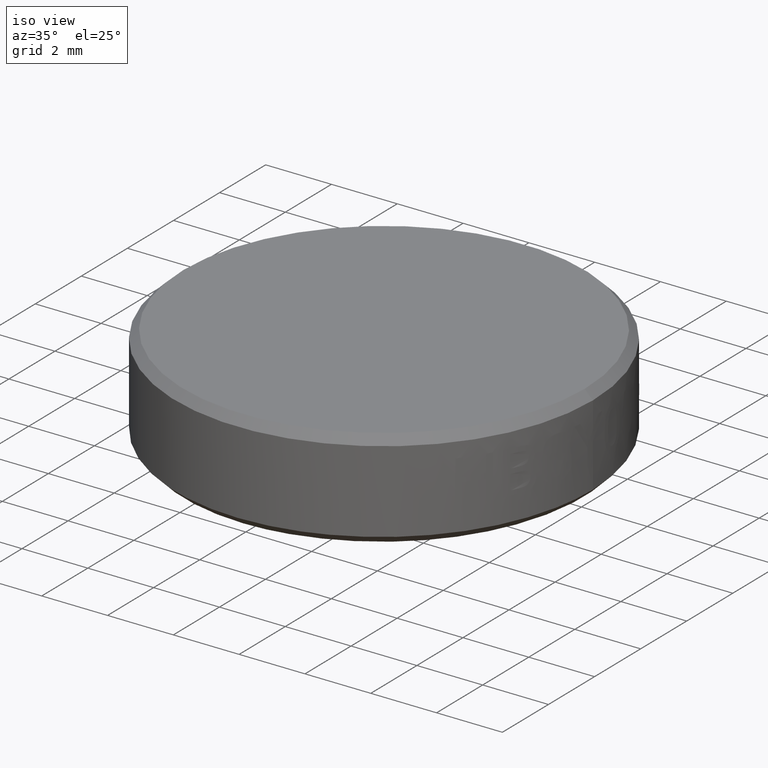
[diagram: clean part render]
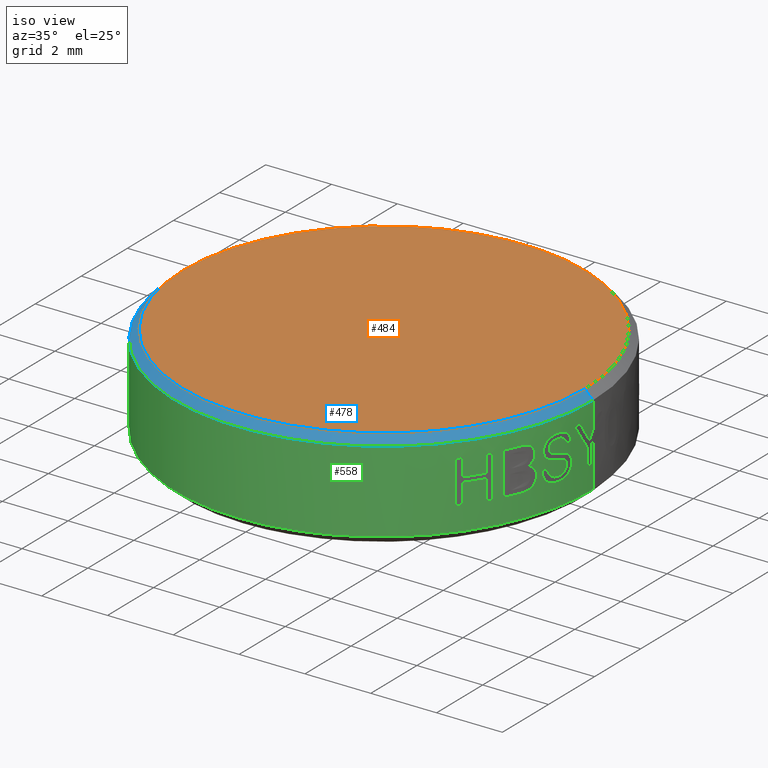
[diagram: same view with three faces highlighted in distinct colors, each labeled with its STEP entity id]
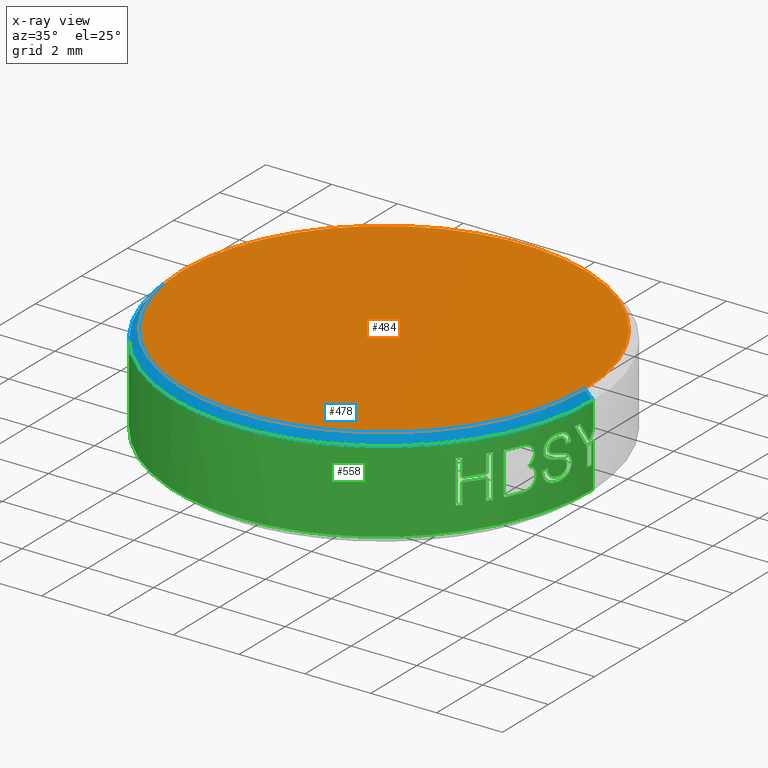
[diagram: x-ray of the same camera — body ghosted, the three highlighted faces saturated]
A machine part, iso view with three faces highlighted in distinct colors.
The next image is the same camera in x-ray (body ghosted, the three faces saturated) — at least one of them is partly hidden behind the body in this view.
Their STEP definitions:

[orange] entity #484 — the highlighted planar face has unit normal (0, 0, 1).
#93 = VERTEX_POINT ( 'NONE', #1017 ) ;
#107 = VERTEX_POINT ( 'NONE', #1066 ) ;
#114 = EDGE_CURVE ( 'NONE', #93, #107, #1103, .T. ) ;
#433 = ORIENTED_EDGE ( 'NONE', *, *, #480, .T. ) ;
#450 = EDGE_LOOP ( 'NONE', ( #433, #486 ) ) ;
#480 = EDGE_CURVE ( 'NONE', #107, #93, #2174, .T. ) ;
#484 = ADVANCED_FACE ( 'NONE', ( #2175 ), #2096, .T. ) ;
#486 = ORIENTED_EDGE ( 'NONE', *, *, #114, .T. ) ;
#1017 = CARTESIAN_POINT ( 'NONE',  ( 6.099999999999992500, 7.623426324692269300E-016, 1.500000000000000000 ) ) ;
#1059 = CARTESIAN_POINT ( 'NONE',  ( 0.0000000000000000000, 0.0000000000000000000, 1.500000000000000000 ) ) ;
#1060 = AXIS2_PLACEMENT_3D ( 'NONE', #1059, #1102, #1101 ) ;
#1066 = CARTESIAN_POINT ( 'NONE',  ( -6.099999999999992500, 0.0000000000000000000, 1.500000000000000000 ) ) ;
#1101 = DIRECTION ( 'NONE',  ( 1.000000000000000000, 0.0000000000000000000, 0.0000000000000000000 ) ) ;
#1102 = DIRECTION ( 'NONE',  ( 0.0000000000000000000, 0.0000000000000000000, 1.000000000000000000 ) ) ;
#1103 = CIRCLE ( 'NONE', #1060, 6.099999999999992500 ) ;
#2096 = PLANE ( 'NONE',  #2172 ) ;
#2162 = DIRECTION ( 'NONE',  ( 1.000000000000000000, 0.0000000000000000000, -0.0000000000000000000 ) ) ;
#2163 = DIRECTION ( 'NONE',  ( 0.0000000000000000000, 0.0000000000000000000, 1.000000000000000000 ) ) ;
#2166 = CARTESIAN_POINT ( 'NONE',  ( 0.0000000000000000000, 0.0000000000000000000, 1.500000000000000000 ) ) ;
#2168 = DIRECTION ( 'NONE',  ( 1.000000000000000000, 0.0000000000000000000, 0.0000000000000000000 ) ) ;
#2169 = DIRECTION ( 'NONE',  ( 0.0000000000000000000, 0.0000000000000000000, 1.000000000000000000 ) ) ;
#2170 = CARTESIAN_POINT ( 'NONE',  ( 0.0000000000000000000, 0.0000000000000000000, 1.500000000000000000 ) ) ;
#2171 = AXIS2_PLACEMENT_3D ( 'NONE', #2170, #2169, #2168 ) ;
#2172 = AXIS2_PLACEMENT_3D ( 'NONE', #2166, #2163, #2162 ) ;
#2174 = CIRCLE ( 'NONE', #2171, 6.099999999999992500 ) ;
#2175 = FACE_OUTER_BOUND ( 'NONE', #450, .T. ) ;

[blue] entity #478 — the highlighted conical surface has half-angle 45 deg.
#93 = VERTEX_POINT ( 'NONE', #1017 ) ;
#95 = EDGE_CURVE ( 'NONE', #107, #157, #1034, .T. ) ;
#107 = VERTEX_POINT ( 'NONE', #1066 ) ;
#113 = EDGE_CURVE ( 'NONE', #93, #159, #1057, .T. ) ;
#157 = VERTEX_POINT ( 'NONE', #1250 ) ;
#159 = VERTEX_POINT ( 'NONE', #1246 ) ;
#471 = ORIENTED_EDGE ( 'NONE', *, *, #544, .F. ) ;
#473 = EDGE_LOOP ( 'NONE', ( #476, #477, #479, #471 ) ) ;
#476 = ORIENTED_EDGE ( 'NONE', *, *, #113, .F. ) ;
#477 = ORIENTED_EDGE ( 'NONE', *, *, #480, .F. ) ;
#478 = ADVANCED_FACE ( 'NONE', ( #2150 ), #2102, .T. ) ;
#479 = ORIENTED_EDGE ( 'NONE', *, *, #95, .T. ) ;
#480 = EDGE_CURVE ( 'NONE', #107, #93, #2174, .T. ) ;
#544 = EDGE_CURVE ( 'NONE', #159, #157, #2318, .T. ) ;
#1017 = CARTESIAN_POINT ( 'NONE',  ( 6.099999999999992500, 7.623426324692269300E-016, 1.500000000000000000 ) ) ;
#1031 = DIRECTION ( 'NONE',  ( -0.7071067811865450200, 0.0000000000000000000, -0.7071067811865500200 ) ) ;
#1032 = VECTOR ( 'NONE', #1031, 1000.000000000000200 ) ;
#1033 = CARTESIAN_POINT ( 'NONE',  ( -6.099999999999992500, 0.0000000000000000000, 1.500000000000000000 ) ) ;
#1034 = LINE ( 'NONE', #1033, #1032 ) ;
#1054 = DIRECTION ( 'NONE',  ( 0.7071067811865450200, 8.659560562354902000E-017, -0.7071067811865500200 ) ) ;
#1055 = VECTOR ( 'NONE', #1054, 1000.000000000000200 ) ;
#1056 = CARTESIAN_POINT ( 'NONE',  ( 6.099999999999992500, 7.470345474798845400E-016, 1.500000000000000000 ) ) ;
#1057 = LINE ( 'NONE', #1056, #1055 ) ;
#1066 = CARTESIAN_POINT ( 'NONE',  ( -6.099999999999992500, 0.0000000000000000000, 1.500000000000000000 ) ) ;
#1246 = CARTESIAN_POINT ( 'NONE',  ( 6.349999999999999600, 7.776507174585692200E-016, 1.249999999999991100 ) ) ;
#1250 = CARTESIAN_POINT ( 'NONE',  ( -6.349999999999999600, 0.0000000000000000000, 1.249999999999991100 ) ) ;
#2094 = DIRECTION ( 'NONE',  ( -1.000000000000000000, 0.0000000000000000000, 0.0000000000000000000 ) ) ;
#2095 = DIRECTION ( 'NONE',  ( 0.0000000000000000000, 0.0000000000000000000, -1.000000000000000000 ) ) ;
#2101 = CARTESIAN_POINT ( 'NONE',  ( 0.0000000000000000000, 0.0000000000000000000, 1.500000000000000000 ) ) ;
#2102 = CONICAL_SURFACE ( 'NONE', #2151, 6.099999999999992500, 0.7853981633974447300 ) ;
#2150 = FACE_OUTER_BOUND ( 'NONE', #473, .T. ) ;
#2151 = AXIS2_PLACEMENT_3D ( 'NONE', #2101, #2095, #2094 ) ;
#2168 = DIRECTION ( 'NONE',  ( 1.000000000000000000, 0.0000000000000000000, 0.0000000000000000000 ) ) ;
#2169 = DIRECTION ( 'NONE',  ( 0.0000000000000000000, 0.0000000000000000000, 1.000000000000000000 ) ) ;
#2170 = CARTESIAN_POINT ( 'NONE',  ( 0.0000000000000000000, 0.0000000000000000000, 1.500000000000000000 ) ) ;
#2171 = AXIS2_PLACEMENT_3D ( 'NONE', #2170, #2169, #2168 ) ;
#2174 = CIRCLE ( 'NONE', #2171, 6.099999999999992500 ) ;
#2269 = AXIS2_PLACEMENT_3D ( 'NONE', #2306, #2305, #2304 ) ;
#2304 = DIRECTION ( 'NONE',  ( 1.000000000000000000, 0.0000000000000000000, 0.0000000000000000000 ) ) ;
#2305 = DIRECTION ( 'NONE',  ( 0.0000000000000000000, 0.0000000000000000000, -1.000000000000000000 ) ) ;
#2306 = CARTESIAN_POINT ( 'NONE',  ( 0.0000000000000000000, 0.0000000000000000000, 1.249999999999991100 ) ) ;
#2318 = CIRCLE ( 'NONE', #2269, 6.349999999999999600 ) ;

[green] entity #558 — the highlighted cylindrical surface (partial cylindrical patch) has radius 6.35 mm, axis along (-0, -0, -1).
#72 = ORIENTED_EDGE ( 'NONE', *, *, #248, .F. ) ;
#84 = VERTEX_POINT ( 'NONE', #1021 ) ;
#91 = CARTESIAN_POINT ( 'NONE',  ( 6.235189115985473800, -1.202078869346339800, 0.6457769238766344300 ) ) ;
#94 = VERTEX_POINT ( 'NONE', #1037 ) ;
#122 = CARTESIAN_POINT ( 'NONE',  ( 6.243838499773716000, -1.156348332869564300, 0.6242161477220802300 ) ) ;
#147 = CARTESIAN_POINT ( 'NONE',  ( 6.239920097209422400, -1.177433772527025900, 0.6363788798831759900 ) ) ;
#150 = VERTEX_POINT ( 'NONE', #1149 ) ;
#155 = EDGE_CURVE ( 'NONE', #150, #94, #1252, .T. ) ;
#157 = VERTEX_POINT ( 'NONE', #1250 ) ;
#159 = VERTEX_POINT ( 'NONE', #1246 ) ;
#200 = EDGE_CURVE ( 'NONE', #276, #215, #1414, .T. ) ;
#201 = VERTEX_POINT ( 'NONE', #1331 ) ;
#202 = EDGE_CURVE ( 'NONE', #278, #225, #1417, .T. ) ;
#203 = EDGE_CURVE ( 'NONE', #222, #215, #1387, .T. ) ;
#204 = EDGE_CURVE ( 'NONE', #222, #225, #1454, .T. ) ;
#205 = EDGE_CURVE ( 'NONE', #219, #2630, #1444, .T. ) ;
#206 = ORIENTED_EDGE ( 'NONE', *, *, #214, .T. ) ;
#207 = ORIENTED_EDGE ( 'NONE', *, *, #205, .T. ) ;
#208 = ORIENTED_EDGE ( 'NONE', *, *, #216, .T. ) ;
#209 = VERTEX_POINT ( 'NONE', #968 ) ;
#210 = VERTEX_POINT ( 'NONE', #966 ) ;
#211 = EDGE_CURVE ( 'NONE', #232, #229, #1211, .T. ) ;
#212 = ORIENTED_EDGE ( 'NONE', *, *, #200, .T. ) ;
#213 = ORIENTED_EDGE ( 'NONE', *, *, #211, .T. ) ;
#214 = EDGE_CURVE ( 'NONE', #229, #210, #1416, .T. ) ;
#215 = VERTEX_POINT ( 'NONE', #1478 ) ;
#216 = EDGE_CURVE ( 'NONE', #210, #2640, #1475, .T. ) ;
#217 = EDGE_CURVE ( 'NONE', #209, #2633, #1473, .T. ) ;
#218 = ORIENTED_EDGE ( 'NONE', *, *, #2603, .T. ) ;
#219 = VERTEX_POINT ( 'NONE', #1455 ) ;
#220 = ORIENTED_EDGE ( 'NONE', *, *, #228, .T. ) ;
#221 = EDGE_CURVE ( 'NONE', #236, #238, #1507, .T. ) ;
#222 = VERTEX_POINT ( 'NONE', #1476 ) ;
#223 = ORIENTED_EDGE ( 'NONE', *, *, #221, .T. ) ;
#224 = EDGE_CURVE ( 'NONE', #238, #231, #1499, .T. ) ;
#225 = VERTEX_POINT ( 'NONE', #1501 ) ;
#226 = EDGE_CURVE ( 'NONE', #2630, #232, #1477, .T. ) ;
#227 = ORIENTED_EDGE ( 'NONE', *, *, #224, .T. ) ;
#228 = EDGE_CURVE ( 'NONE', #231, #219, #1534, .T. ) ;
#229 = VERTEX_POINT ( 'NONE', #1508 ) ;
#230 = ORIENTED_EDGE ( 'NONE', *, *, #226, .T. ) ;
#231 = VERTEX_POINT ( 'NONE', #1500 ) ;
#232 = VERTEX_POINT ( 'NONE', #1551 ) ;
#233 = EDGE_CURVE ( 'NONE', #2622, #2628, #1550, .T. ) ;
#234 = ORIENTED_EDGE ( 'NONE', *, *, #2619, .F. ) ;
#235 = EDGE_CURVE ( 'NONE', #2608, #2643, #1548, .T. ) ;
#236 = VERTEX_POINT ( 'NONE', #1547 ) ;
#237 = EDGE_CURVE ( 'NONE', #2643, #2622, #1588, .T. ) ;
#238 = VERTEX_POINT ( 'NONE', #1590 ) ;
#239 = EDGE_CURVE ( 'NONE', #2649, #236, #1633, .T. ) ;
#240 = ORIENTED_EDGE ( 'NONE', *, *, #313, .T. ) ;
#241 = EDGE_CURVE ( 'NONE', #311, #247, #1589, .T. ) ;
#242 = ORIENTED_EDGE ( 'NONE', *, *, #300, .T. ) ;
#243 = ORIENTED_EDGE ( 'NONE', *, *, #241, .T. ) ;
#244 = EDGE_CURVE ( 'NONE', #245, #247, #1650, .T. ) ;
#245 = VERTEX_POINT ( 'NONE', #1591 ) ;
#247 = VERTEX_POINT ( 'NONE', #1610 ) ;
#248 = EDGE_CURVE ( 'NONE', #250, #201, #1587, .T. ) ;
#249 = VERTEX_POINT ( 'NONE', #1643 ) ;
#250 = VERTEX_POINT ( 'NONE', #1632 ) ;
#251 = VERTEX_POINT ( 'NONE', #1646 ) ;
#252 = VERTEX_POINT ( 'NONE', #1634 ) ;
#253 = ORIENTED_EDGE ( 'NONE', *, *, #244, .F. ) ;
#254 = ORIENTED_EDGE ( 'NONE', *, *, #256, .T. ) ;
#255 = EDGE_CURVE ( 'NONE', #251, #249, #1636, .T. ) ;
#256 = EDGE_CURVE ( 'NONE', #250, #251, #1696, .T. ) ;
#258 = ORIENTED_EDGE ( 'NONE', *, *, #260, .T. ) ;
#259 = ORIENTED_EDGE ( 'NONE', *, *, #255, .T. ) ;
#260 = EDGE_CURVE ( 'NONE', #249, #265, #1692, .T. ) ;
#261 = EDGE_CURVE ( 'NONE', #245, #299, #1684, .T. ) ;
#262 = ORIENTED_EDGE ( 'NONE', *, *, #263, .T. ) ;
#263 = EDGE_CURVE ( 'NONE', #265, #209, #1687, .T. ) ;
#264 = EDGE_CURVE ( 'NONE', #312, #252, #1721, .T. ) ;
#265 = VERTEX_POINT ( 'NONE', #1723 ) ;
#266 = ORIENTED_EDGE ( 'NONE', *, *, #204, .T. ) ;
#268 = ORIENTED_EDGE ( 'NONE', *, *, #202, .F. ) ;
#269 = EDGE_CURVE ( 'NONE', #278, #201, #1714, .T. ) ;
#270 = ORIENTED_EDGE ( 'NONE', *, *, #269, .T. ) ;
#272 = ORIENTED_EDGE ( 'NONE', *, *, #203, .F. ) ;
#273 = EDGE_LOOP ( 'NONE', ( #274, #275, #212, #272, #266, #268, #270, #72, #254, #259, #258, #262 ) ) ;
#274 = ORIENTED_EDGE ( 'NONE', *, *, #217, .T. ) ;
#275 = ORIENTED_EDGE ( 'NONE', *, *, #277, .T. ) ;
#276 = VERTEX_POINT ( 'NONE', #1716 ) ;
#277 = EDGE_CURVE ( 'NONE', #2633, #276, #1724, .T. ) ;
#278 = VERTEX_POINT ( 'NONE', #1715 ) ;
#298 = VERTEX_POINT ( 'NONE', #1722 ) ;
#299 = VERTEX_POINT ( 'NONE', #1755 ) ;
#300 = EDGE_CURVE ( 'NONE', #299, #298, #1815, .T. ) ;
#302 = ORIENTED_EDGE ( 'NONE', *, *, #303, .T. ) ;
#303 = EDGE_CURVE ( 'NONE', #298, #312, #1814, .T. ) ;
#309 = EDGE_LOOP ( 'NONE', ( #310, #240, #243, #253, #314, #242, #302 ) ) ;
#310 = ORIENTED_EDGE ( 'NONE', *, *, #264, .T. ) ;
#311 = VERTEX_POINT ( 'NONE', #1736 ) ;
#312 = VERTEX_POINT ( 'NONE', #1830 ) ;
#313 = EDGE_CURVE ( 'NONE', #252, #311, #1828, .T. ) ;
#314 = ORIENTED_EDGE ( 'NONE', *, *, #261, .T. ) ;
#448 = CARTESIAN_POINT ( 'NONE',  ( 6.229844924566733300, -1.229472477239721600, 0.6542216179539250800 ) ) ;
#449 = CARTESIAN_POINT ( 'NONE',  ( 6.231844787345414400, -1.219297940073921200, 0.6514279113905759900 ) ) ;
#467 = ORIENTED_EDGE ( 'NONE', *, *, #522, .F. ) ;
#469 = EDGE_LOOP ( 'NONE', ( #467, #549, #545, #548, #540, #2596, #2597, #2646, #2593, #2613, #2591, #2612, #2611, #2614, #2610, #2624 ) ) ;
#503 = EDGE_CURVE ( 'NONE', #157, #150, #2241, .T. ) ;
#511 = EDGE_CURVE ( 'NONE', #527, #513, #2232, .T. ) ;
#513 = VERTEX_POINT ( 'NONE', #2234 ) ;
#522 = EDGE_CURVE ( 'NONE', #159, #526, #2223, .T. ) ;
#526 = VERTEX_POINT ( 'NONE', #2224 ) ;
#527 = VERTEX_POINT ( 'NONE', #2263 ) ;
#540 = ORIENTED_EDGE ( 'NONE', *, *, #2600, .T. ) ;
#544 = EDGE_CURVE ( 'NONE', #159, #157, #2318, .T. ) ;
#545 = ORIENTED_EDGE ( 'NONE', *, *, #503, .T. ) ;
#548 = ORIENTED_EDGE ( 'NONE', *, *, #155, .T. ) ;
#549 = ORIENTED_EDGE ( 'NONE', *, *, #544, .T. ) ;
#558 = ADVANCED_FACE ( 'NONE', ( #2341, #2282, #2302, #2242 ), #2337, .T. ) ;
#743 = CARTESIAN_POINT ( 'NONE',  ( 6.218531875859152800, -1.285445582734110200, 0.6640545947600071700 ) ) ;
#744 = CARTESIAN_POINT ( 'NONE',  ( 6.219707788194336100, -1.279747675488870400, 0.6634638557164860300 ) ) ;
#745 = CARTESIAN_POINT ( 'NONE',  ( 6.221462695992402200, -1.271188815959070500, 0.6623907089814278200 ) ) ;
#746 = CARTESIAN_POINT ( 'NONE',  ( 6.224064281617876800, -1.258433293040725600, 0.6605653460055933600 ) ) ;
#747 = CARTESIAN_POINT ( 'NONE',  ( 6.226575107883955500, -1.245926475487106200, 0.6580930544100182000 ) ) ;
#886 = CARTESIAN_POINT ( 'NONE',  ( 6.207090700812707400, -1.339598832443656500, 0.6666666666666667400 ) ) ;
#904 = CARTESIAN_POINT ( 'NONE',  ( 6.215482145452006600, -1.300163949476904400, 0.6653884188514562800 ) ) ;
#965 = CARTESIAN_POINT ( 'NONE',  ( 6.223176035635822800, -1.262955999650750900, 0.2483651269406776900 ) ) ;
#966 = CARTESIAN_POINT ( 'NONE',  ( 6.260534561495793700, -1.062170892237531300, 0.1833333333333333200 ) ) ;
#967 = CARTESIAN_POINT ( 'NONE',  ( 6.218049698295017100, -1.288109900389286000, 0.2549493551991787200 ) ) ;
#968 = CARTESIAN_POINT ( 'NONE',  ( 5.066708481723987100, -3.827657921134830500, 0.1166666666666668400 ) ) ;
#969 = CARTESIAN_POINT ( 'NONE',  ( 6.235310488675161800, -1.201428757458264900, 0.2313723517624893300 ) ) ;
#970 = CARTESIAN_POINT ( 'NONE',  ( 6.232471479798333800, -1.216115261219161500, 0.2355980065759801000 ) ) ;
#971 = CARTESIAN_POINT ( 'NONE',  ( 6.229586749075918000, -1.230799899508122600, 0.2396587235340291400 ) ) ;
#986 = CARTESIAN_POINT ( 'NONE',  ( 6.199706783934266800, -1.374631753245235200, 0.2770419179368864300 ) ) ;
#987 = CARTESIAN_POINT ( 'NONE',  ( 6.237473324249029000, -1.190137544535387400, 0.2280215196549532100 ) ) ;
#988 = CARTESIAN_POINT ( 'NONE',  ( 6.237128360588843500, -1.191944067131210500, 0.2285642503063766200 ) ) ;
#989 = CARTESIAN_POINT ( 'NONE',  ( 6.236601949223143900, -1.194697608153624000, 0.2293874864318018500 ) ) ;
#990 = CARTESIAN_POINT ( 'NONE',  ( 6.211915426601605900, -1.317243251165925300, 0.6661701878809127600 ) ) ;
#1021 = CARTESIAN_POINT ( 'NONE',  ( 6.345471008987389400, -0.2397867262810242400, -0.5000000000000000000 ) ) ;
#1037 = CARTESIAN_POINT ( 'NONE',  ( 1.125339124336679200E-015, -6.349999999999999600, -1.252153404871644300 ) ) ;
#1143 = CARTESIAN_POINT ( 'NONE',  ( 5.998288613120267100, -2.084028084002549400, 0.6344242982657758400 ) ) ;
#1149 = CARTESIAN_POINT ( 'NONE',  ( -6.350000000000000500, -6.396792817664476200E-015, -1.198900718868443700 ) ) ;
#1150 = CARTESIAN_POINT ( 'NONE',  ( 5.982366621139323800, -2.129333063914111300, 0.6966663668087844700 ) ) ;
#1162 = CARTESIAN_POINT ( 'NONE',  ( 6.006614137710124100, -2.059883632782956800, 0.5821573031128631800 ) ) ;
#1164 = CARTESIAN_POINT ( 'NONE',  ( 6.004068634777524100, -2.067291625335097500, 0.5998070720554531400 ) ) ;
#1187 = CARTESIAN_POINT ( 'NONE',  ( 6.237432641494252500, -1.190352088443686500, 0.2280880114187242600 ) ) ;
#1189 = CARTESIAN_POINT ( 'NONE',  ( 6.154842523060767500, -1.562182292923257400, 0.3578125000000000300 ) ) ;
#1190 = CARTESIAN_POINT ( 'NONE',  ( 6.152462461733480700, -1.571559497319339200, 0.3682137278331206200 ) ) ;
#1191 = CARTESIAN_POINT ( 'NONE',  ( 6.150756504840223300, -1.578198561236924300, 0.3763202500568109100 ) ) ;
#1192 = CARTESIAN_POINT ( 'NONE',  ( 6.149248553342828500, -1.584060068097899800, 0.3850379749782010300 ) ) ;
#1193 = CARTESIAN_POINT ( 'NONE',  ( 6.148389237275050200, -1.587392791403654300, 0.3905648274334712100 ) ) ;
#1194 = CARTESIAN_POINT ( 'NONE',  ( 6.147153847773626700, -1.592170109957426800, 0.3999501624990372500 ) ) ;
#1195 = CARTESIAN_POINT ( 'NONE',  ( 6.146578556947881500, -1.594389076339733000, 0.4049603547995424000 ) ) ;
#1196 = CARTESIAN_POINT ( 'NONE',  ( 6.144981547514775300, -1.600537320600421600, 0.4209435060042244200 ) ) ;
#1197 = CARTESIAN_POINT ( 'NONE',  ( 6.144275562849413700, -1.603240603629204800, 0.4309252277325137400 ) ) ;
#1198 = CARTESIAN_POINT ( 'NONE',  ( 6.143661327769017100, -1.605592148091753200, 0.4458958783702876000 ) ) ;
#1199 = CARTESIAN_POINT ( 'NONE',  ( 6.143597291556224200, -1.605837011237572600, 0.4487672325745592500 ) ) ;
#1200 = CARTESIAN_POINT ( 'NONE',  ( 6.143378240447646900, -1.606674821571482600, 0.4593507620775493200 ) ) ;
#1201 = CARTESIAN_POINT ( 'NONE',  ( 6.143285306595426000, -1.607030096996968900, 0.4655498463021980300 ) ) ;
#1202 = CARTESIAN_POINT ( 'NONE',  ( 6.143208997558378600, -1.607321751335985900, 0.4726562500000000000 ) ) ;
#1203 = CARTESIAN_POINT ( 'NONE',  ( 6.247488473031865800, -1.136404392892754300, 0.2113527423276065900 ) ) ;
#1204 = CARTESIAN_POINT ( 'NONE',  ( 6.246212837947699500, -1.143395972762383700, 0.2135912326575842800 ) ) ;
#1205 = CARTESIAN_POINT ( 'NONE',  ( 6.243281901487170800, -1.159330741613559200, 0.2186130146261196200 ) ) ;
#1206 = CARTESIAN_POINT ( 'NONE',  ( 6.240822937732493100, -1.172556337599666800, 0.2226872710165830000 ) ) ;
#1207 = CARTESIAN_POINT ( 'NONE',  ( 6.009901604734381000, -2.050264965827102600, 0.5517744133358325500 ) ) ;
#1208 = CARTESIAN_POINT ( 'NONE',  ( 6.008653557199559200, -2.053919705889199600, 0.5639958004141307800 ) ) ;
#1209 = CARTESIAN_POINT ( 'NONE',  ( 5.976190050326854600, -2.146640589814842400, 0.7136078105956557000 ) ) ;
#1210 = CARTESIAN_POINT ( 'NONE',  ( 5.993300135424623100, -2.098362021558484600, 0.6577679237486400200 ) ) ;
#1211 = B_SPLINE_CURVE_WITH_KNOTS ( 'NONE', 3,
 ( #1202, #1201, #1200, #1199, #1198, #1197, #1196, #1195, #1194, #1193, #1192, #1191, #1190, #1189 ),
 .UNSPECIFIED., .F., .F.,
 ( 4, 2, 2, 2, 2, 2, 4 ),
 ( 0.0000000000000000000, 0.1250000000000010300, 0.2500000000000020500, 0.5000000000000018900, 0.6250000000000017800, 0.7500000000000016700, 1.000000000000000000 ),
 .UNSPECIFIED. ) ;
#1246 = CARTESIAN_POINT ( 'NONE',  ( 6.349999999999999600, 7.776507174585692200E-016, 1.249999999999991100 ) ) ;
#1247 = CARTESIAN_POINT ( 'NONE',  ( -6.283622752603098300, -1.043733549046127900, -1.207499172675128100 ) ) ;
#1248 = CARTESIAN_POINT ( 'NONE',  ( -6.350000000000000500, -0.5291898079813711600, -1.203338636770888500 ) ) ;
#1250 = CARTESIAN_POINT ( 'NONE',  ( -6.349999999999999600, 0.0000000000000000000, 1.249999999999991100 ) ) ;
#1251 = CARTESIAN_POINT ( 'NONE',  ( -6.350000000000000500, -6.396792817664476200E-015, -1.198900718868443700 ) ) ;
#1252 = B_SPLINE_CURVE_WITH_KNOTS ( 'NONE', 3,
 ( #1251, #1248, #1247, #1305, #1304, #1303, #1302, #1301, #1300, #1299, #1298, #1297, #1296, #1295 ),
 .UNSPECIFIED., .F., .F.,
 ( 4, 2, 2, 2, 2, 2, 4 ),
 ( 0.7500000000000000000, 0.7812500000000000000, 0.8125000000000000000, 0.8437500000000000000, 0.8750000000000000000, 0.9375000000000000000, 1.000000000000000000 ),
 .UNSPECIFIED. ) ;
#1295 = CARTESIAN_POINT ( 'NONE',  ( 1.125339124336679200E-015, -6.349999999999999600, -1.252153404871644300 ) ) ;
#1296 = CARTESIAN_POINT ( 'NONE',  ( -0.6040464965618568300, -6.350000000000002300, -1.252153793009334000 ) ) ;
#1297 = CARTESIAN_POINT ( 'NONE',  ( -1.267525895873434600, -6.263455164626269500, -1.251044653154200800 ) ) ;
#1298 = CARTESIAN_POINT ( 'NONE',  ( -2.633402115100490300, -5.822601291190862200, -1.246607317458290100 ) ) ;
#1299 = CARTESIAN_POINT ( 'NONE',  ( -3.335992009091277100, -5.466678375410434200, -1.243279121617512800 ) ) ;
#1300 = CARTESIAN_POINT ( 'NONE',  ( -4.306991992804970700, -4.684554275503608700, -1.236622535867112800 ) ) ;
#1301 = CARTESIAN_POINT ( 'NONE',  ( -4.616262276818577700, -4.382894098279638900, -1.234126291952107400 ) ) ;
#1302 = CARTESIAN_POINT ( 'NONE',  ( -5.181279952529142600, -3.697833979322530800, -1.228579040125684900 ) ) ;
#1303 = CARTESIAN_POINT ( 'NONE',  ( -5.436966962020688000, -3.314370269459710400, -1.225528032214267200 ) ) ;
#1304 = CARTESIAN_POINT ( 'NONE',  ( -5.867538165171270100, -2.473389558771823500, -1.218871252395022700 ) ) ;
#1305 = CARTESIAN_POINT ( 'NONE',  ( -6.042330288894523200, -2.015822238775930600, -1.215265480487194700 ) ) ;
#1331 = CARTESIAN_POINT ( 'NONE',  ( 5.422657172094519100, -3.304132139296470400, 0.8000000000000001600 ) ) ;
#1377 = AXIS2_PLACEMENT_3D ( 'NONE', #1391, #1453, #1452 ) ;
#1383 = AXIS2_PLACEMENT_3D ( 'NONE', #1415, #1389, #1388 ) ;
#1387 = CIRCLE ( 'NONE', #1377, 6.350000000000000500 ) ;
#1388 = DIRECTION ( 'NONE',  ( 0.7979068475155884900, -0.6027807749818630000, 0.0000000000000000000 ) ) ;
#1389 = DIRECTION ( 'NONE',  ( -0.0000000000000000000, -0.0000000000000000000, -1.000000000000000000 ) ) ;
#1390 = CARTESIAN_POINT ( 'NONE',  ( 6.010579502383218500, -2.048276253372773400, 0.5442762161315325400 ) ) ;
#1391 = CARTESIAN_POINT ( 'NONE',  ( 0.0000000000000000000, 0.0000000000000000000, 0.8000000000000001600 ) ) ;
#1411 = DIRECTION ( 'NONE',  ( 0.0000000000000000000, 0.0000000000000000000, 1.000000000000000000 ) ) ;
#1412 = VECTOR ( 'NONE', #1411, 1000.000000000000000 ) ;
#1413 = CARTESIAN_POINT ( 'NONE',  ( 4.954102476001478000, -3.972325346352691100, -0.5000000000000000000 ) ) ;
#1414 = LINE ( 'NONE', #1413, #1412 ) ;
#1415 = CARTESIAN_POINT ( 'NONE',  ( 0.0000000000000000000, 0.0000000000000000000, 0.2666666666666667700 ) ) ;
#1416 = B_SPLINE_CURVE_WITH_KNOTS ( 'NONE', 3,
 ( #1448, #1447, #1446, #1445, #1438, #1437, #1436, #1435, #1434, #1433, #1432, #1431, #1430, #1429, #986, #967, #965, #971, #970, #969, #989, #988, #987, #1187, #1206, #1205, #1204, #1203, #2634, #2632, #2635, #2636, #2637, #2639 ),
 .UNSPECIFIED., .F., .F.,
 ( 4, 2, 2, 2, 1, 1, 2, 2, 2, 2, 1, 1, 1, 2, 2, 2, 1, 2, 2, 4 ),
 ( 0.0000000000000000000, 0.06249999999999697500, 0.09374999999999600300, 0.1249999999999950300, 0.1874999999999930600, 0.2187499999999921200, 0.2343749999999916200, 0.2499999999999911200, 0.5000000000000004400, 0.6250000000000054400, 0.6875000000000074400, 0.7187500000000084400, 0.7343750000000083300, 0.7421875000000079900, 0.7500000000000077700, 0.8125000000000066600, 0.8437500000000064400, 0.8593750000000057700, 0.8750000000000051100, 1.000000000000000000 ),
 .UNSPECIFIED. ) ;
#1417 = CIRCLE ( 'NONE', #1383, 6.350000000000000500 ) ;
#1421 = CARTESIAN_POINT ( 'NONE',  ( 6.248405332703182300, -1.131411276430089200, 0.6055416709138302700 ) ) ;
#1422 = CARTESIAN_POINT ( 'NONE',  ( 6.250816627656989000, -1.117993561899319800, 0.5927789502422784500 ) ) ;
#1423 = CARTESIAN_POINT ( 'NONE',  ( 6.254606937174706600, -1.096590250954046600, 0.5658846692036551000 ) ) ;
#1424 = CARTESIAN_POINT ( 'NONE',  ( 6.256209395608362200, -1.087384546310153000, 0.5508394213633610600 ) ) ;
#1425 = CARTESIAN_POINT ( 'NONE',  ( 6.258868653437127200, -1.071972169542931800, 0.5175527110408089100 ) ) ;
#1426 = CARTESIAN_POINT ( 'NONE',  ( 6.259767548567293000, -1.066691303951226500, 0.5022573631019627800 ) ) ;
#1427 = CARTESIAN_POINT ( 'NONE',  ( 6.260705045692487800, -1.061166144904734000, 0.4805939277273810200 ) ) ;
#1428 = CARTESIAN_POINT ( 'NONE',  ( 6.260784828779574900, -1.060695022543997500, 0.4783932093588145200 ) ) ;
#1429 = CARTESIAN_POINT ( 'NONE',  ( 6.190327594546798400, -1.415359552881805300, 0.2886952183272381000 ) ) ;
#1430 = CARTESIAN_POINT ( 'NONE',  ( 6.183082905894153200, -1.446371075548133400, 0.2992309998549247400 ) ) ;
#1431 = CARTESIAN_POINT ( 'NONE',  ( 6.182071365572692700, -1.450690508294655500, 0.3007137261289418700 ) ) ;
#1432 = CARTESIAN_POINT ( 'NONE',  ( 6.180673629454092900, -1.456634067314362100, 0.3027939420120251400 ) ) ;
#1433 = CARTESIAN_POINT ( 'NONE',  ( 6.178617274682825800, -1.465349389046781900, 0.3058920035911456600 ) ) ;
#1434 = CARTESIAN_POINT ( 'NONE',  ( 6.174106753774474900, -1.484286346497143600, 0.3129649782238963500 ) ) ;
#1435 = CARTESIAN_POINT ( 'NONE',  ( 6.170753081474800600, -1.498124510799188300, 0.3187603809630586400 ) ) ;
#1436 = CARTESIAN_POINT ( 'NONE',  ( 6.167762479092642600, -1.510372027711716500, 0.3243776857381865900 ) ) ;
#1437 = CARTESIAN_POINT ( 'NONE',  ( 6.166192406840839800, -1.516771593379745200, 0.3274622699494930700 ) ) ;
#1438 = CARTESIAN_POINT ( 'NONE',  ( 6.163802660954786500, -1.526453936898203100, 0.3325003644366728000 ) ) ;
#1439 = CARTESIAN_POINT ( 'NONE',  ( 6.261044089807861600, -1.059163589162760700, 0.4709746004290414900 ) ) ;
#1440 = CARTESIAN_POINT ( 'NONE',  ( 6.261424976292951200, -1.056911162714830900, 0.4589614835480915800 ) ) ;
#1441 = CARTESIAN_POINT ( 'NONE',  ( 6.261781994808678100, -1.054792932516479300, 0.4442927562082690200 ) ) ;
#1442 = CARTESIAN_POINT ( 'NONE',  ( 6.262009520424572700, -1.053440442603189100, 0.4333333333333332900 ) ) ;
#1443 = CARTESIAN_POINT ( 'NONE',  ( 6.012595710491824600, -2.042355957167301100, 0.5198073771679732100 ) ) ;
#1444 = B_SPLINE_CURVE_WITH_KNOTS ( 'NONE', 3,
 ( #1442, #1441, #1440, #1439, #1428, #1427, #1426, #1425, #1424, #1423, #1422, #1421, #122, #147, #91, #449, #448, #747, #746, #745, #744, #743, #904, #990, #886 ),
 .UNSPECIFIED., .F., .F.,
 ( 4, 1, 2, 2, 2, 2, 2, 1, 2, 2, 1, 2, 2, 4 ),
 ( 0.0000000000000000000, 0.06250000000000054100, 0.09375000000000056900, 0.1250000000000006100, 0.2500000000000009400, 0.3750000000000013300, 0.5000000000000016700, 0.6250000000000021100, 0.6875000000000023300, 0.7500000000000024400, 0.8125000000000026600, 0.8437500000000035500, 0.8750000000000043300, 1.000000000000000000 ),
 .UNSPECIFIED. ) ;
#1445 = CARTESIAN_POINT ( 'NONE',  ( 6.162689202960361700, -1.530941484733439700, 0.3349541434751828800 ) ) ;
#1446 = CARTESIAN_POINT ( 'NONE',  ( 6.159442019750777300, -1.543973501448993500, 0.3429560818144459800 ) ) ;
#1447 = CARTESIAN_POINT ( 'NONE',  ( 6.157188483923724800, -1.552939440957656000, 0.3496864297294669500 ) ) ;
#1448 = CARTESIAN_POINT ( 'NONE',  ( 6.154842523060767500, -1.562182292923257400, 0.3578125000000000300 ) ) ;
#1449 = DIRECTION ( 'NONE',  ( 0.0000000000000000000, 0.0000000000000000000, -1.000000000000000000 ) ) ;
#1450 = VECTOR ( 'NONE', #1449, 1000.000000000000000 ) ;
#1451 = CARTESIAN_POINT ( 'NONE',  ( 5.066708481723987100, -3.827657921134830500, 0.8000000000000001600 ) ) ;
#1452 = DIRECTION ( 'NONE',  ( 0.7801736182679491800, -0.6255630466697150700, 0.0000000000000000000 ) ) ;
#1453 = DIRECTION ( 'NONE',  ( -0.0000000000000000000, -0.0000000000000000000, -1.000000000000000000 ) ) ;
#1454 = LINE ( 'NONE', #1451, #1450 ) ;
#1455 = CARTESIAN_POINT ( 'NONE',  ( 6.262009520424572700, -1.053440442603189100, 0.4333333333333332900 ) ) ;
#1456 = CARTESIAN_POINT ( 'NONE',  ( 6.294301869429533600, -0.8392043711134249400, -0.1309895833333332100 ) ) ;
#1457 = CARTESIAN_POINT ( 'NONE',  ( 6.294222955612248400, -0.8397962500463344000, -0.09271132088718653200 ) ) ;
#1458 = CARTESIAN_POINT ( 'NONE',  ( 6.293566768809961700, -0.8447518554935994400, -0.05887945469767334700 ) ) ;
#1459 = CARTESIAN_POINT ( 'NONE',  ( 6.291670220334074400, -0.8587245957049367600, -0.01480124979835372400 ) ) ;
#1460 = CARTESIAN_POINT ( 'NONE',  ( 6.290721665071716400, -0.8656687096832038600, 0.002453931369760182900 ) ) ;
#1461 = CARTESIAN_POINT ( 'NONE',  ( 6.288566376045208600, -0.8811891490485256300, 0.03282265654238490000 ) ) ;
#1462 = CARTESIAN_POINT ( 'NONE',  ( 6.287293189723790500, -0.8902550603340505500, 0.04748062214138768600 ) ) ;
#1463 = CARTESIAN_POINT ( 'NONE',  ( 6.285064672946246500, -0.9058087482368798500, 0.06867797505892737900 ) ) ;
#1464 = CARTESIAN_POINT ( 'NONE',  ( 6.284525285447500700, -0.9095419737587551200, 0.07325169300452605300 ) ) ;
#1465 = CARTESIAN_POINT ( 'NONE',  ( 6.283094864111829400, -0.9193713036796038500, 0.08459198051535310500 ) ) ;
#1466 = CARTESIAN_POINT ( 'NONE',  ( 6.280798895808628900, -0.9350265111199151900, 0.1013031970409756100 ) ) ;
#1467 = CARTESIAN_POINT ( 'NONE',  ( 6.278032372667066600, -0.9534124003234864000, 0.1171167693447435100 ) ) ;
#1468 = CARTESIAN_POINT ( 'NONE',  ( 6.271807943853905200, -0.9938147839493350900, 0.1475470549898065800 ) ) ;
#1469 = CARTESIAN_POINT ( 'NONE',  ( 6.266740646764626300, -1.025591645337559800, 0.1662381001365517700 ) ) ;
#1470 = DIRECTION ( 'NONE',  ( 0.0000000000000000000, 0.0000000000000000000, -1.000000000000000000 ) ) ;
#1471 = VECTOR ( 'NONE', #1470, 1000.000000000000000 ) ;
#1472 = CARTESIAN_POINT ( 'NONE',  ( 5.066708481723987100, -3.827657921134830500, 0.1166666666666668400 ) ) ;
#1473 = LINE ( 'NONE', #1472, #1471 ) ;
#1474 = CARTESIAN_POINT ( 'NONE',  ( 6.260534561495793700, -1.062170892237531300, 0.1833333333333333200 ) ) ;
#1475 = B_SPLINE_CURVE_WITH_KNOTS ( 'NONE', 3,
 ( #1474, #1469, #1468, #1467, #1466, #1465, #1464, #1463, #1462, #1461, #1460, #1459, #1458, #1457, #1456 ),
 .UNSPECIFIED., .F., .F.,
 ( 4, 2, 1, 2, 2, 2, 2, 4 ),
 ( 0.0000000000000000000, 0.2500000000000002800, 0.3750000000000004400, 0.4375000000000001700, 0.4999999999999998900, 0.6249999999999997800, 0.7499999999999996700, 1.000000000000000000 ),
 .UNSPECIFIED. ) ;
#1476 = CARTESIAN_POINT ( 'NONE',  ( 5.066708481723987100, -3.827657921134830500, 0.8000000000000001600 ) ) ;
#1477 = B_SPLINE_CURVE_WITH_KNOTS ( 'NONE', 3,
 ( #1538, #1537, #1536, #1535, #1564, #1563, #1562, #1561, #1560, #1559, #1558, #1557, #1556, #1555, #1554 ),
 .UNSPECIFIED., .F., .F.,
 ( 4, 2, 1, 2, 2, 2, 2, 4 ),
 ( 0.0000000000000000000, 0.2500000000000014400, 0.3750000000000021100, 0.4375000000000015500, 0.5000000000000010000, 0.6250000000000008900, 0.7500000000000008900, 1.000000000000000000 ),
 .UNSPECIFIED. ) ;
#1478 = CARTESIAN_POINT ( 'NONE',  ( 4.954102476001478000, -3.972325346352691100, 0.8000000000000001600 ) ) ;
#1479 = CARTESIAN_POINT ( 'NONE',  ( 6.185001637820905200, -1.438158121185829400, 0.8105501077046195500 ) ) ;
#1480 = CARTESIAN_POINT ( 'NONE',  ( 6.181982099852321600, -1.451082822751860000, 0.8086086256019572300 ) ) ;
#1481 = CARTESIAN_POINT ( 'NONE',  ( 6.177435358179113000, -1.470407311779738500, 0.8053560457202199000 ) ) ;
#1482 = CARTESIAN_POINT ( 'NONE',  ( 6.172837943031577600, -1.489544191599267300, 0.8010823956552517400 ) ) ;
#1483 = CARTESIAN_POINT ( 'NONE',  ( 6.166665877485102400, -1.514893436885354400, 0.7944765776279764100 ) ) ;
#1484 = CARTESIAN_POINT ( 'NONE',  ( 6.162978058612316600, -1.529830209046938400, 0.7900371466313076400 ) ) ;
#1485 = CARTESIAN_POINT ( 'NONE',  ( 6.156476483667226800, -1.555788007892415100, 0.7810858728608088800 ) ) ;
#1486 = CARTESIAN_POINT ( 'NONE',  ( 6.153320038259884900, -1.568216491785249200, 0.7762072580554951800 ) ) ;
#1487 = CARTESIAN_POINT ( 'NONE',  ( 6.144163329789702900, -1.603857478175363400, 0.7603624798793630100 ) ) ;
#1488 = CARTESIAN_POINT ( 'NONE',  ( 6.138476566266218600, -1.625425653871325000, 0.7481873827483513900 ) ) ;
#1489 = CARTESIAN_POINT ( 'NONE',  ( 6.130675613607600400, -1.654514218262480600, 0.7275068695314503800 ) ) ;
#1490 = CARTESIAN_POINT ( 'NONE',  ( 6.127479954950463700, -1.666311017768848000, 0.7181539832809454800 ) ) ;
#1491 = CARTESIAN_POINT ( 'NONE',  ( 6.122122135506447000, -1.685889546856373700, 0.7003743507657481700 ) ) ;
#1492 = CARTESIAN_POINT ( 'NONE',  ( 6.119592512251620600, -1.695041488165471000, 0.6909734538884628700 ) ) ;
#1493 = CARTESIAN_POINT ( 'NONE',  ( 6.112477034476619900, -1.720592093852933300, 0.6612375213975488800 ) ) ;
#1494 = CARTESIAN_POINT ( 'NONE',  ( 6.108365751175388600, -1.735085826920352600, 0.6393692439248611600 ) ) ;
#1495 = CARTESIAN_POINT ( 'NONE',  ( 6.101515662510831100, -1.759022909756256600, 0.5915440440219954500 ) ) ;
#1496 = CARTESIAN_POINT ( 'NONE',  ( 6.098751897724758600, -1.768549564846770200, 0.5659756903586842200 ) ) ;
#1497 = CARTESIAN_POINT ( 'NONE',  ( 6.096480375482028300, -1.776352913540856000, 0.5340778762567202100 ) ) ;
#1498 = AXIS2_PLACEMENT_3D ( 'NONE', #1565, #1553, #1552 ) ;
#1499 = B_SPLINE_CURVE_WITH_KNOTS ( 'NONE', 3,
 ( #1533, #1532, #1531, #1530, #1529, #1528, #1527, #1526, #1525, #1524, #1523, #1522, #1521, #1520, #1519, #1518, #1517, #1516, #1515, #1514, #1513, #1512, #1511, #1510, #1509 ),
 .UNSPECIFIED., .F., .F.,
 ( 4, 2, 1, 2, 2, 2, 2, 2, 2, 2, 2, 2, 4 ),
 ( 0.0000000000000000000, 0.06250000000000188700, 0.09375000000000245600, 0.1093750000000022900, 0.1250000000000021100, 0.1875000000000011900, 0.2500000000000002800, 0.3749999999999998900, 0.4999999999999995000, 0.7499999999999994400, 0.8749999999999995600, 0.9374999999999996700, 1.000000000000000000 ),
 .UNSPECIFIED. ) ;
#1500 = CARTESIAN_POINT ( 'NONE',  ( 6.289809895905131400, -0.8722336116969375800, 0.4333333333333332900 ) ) ;
#1501 = CARTESIAN_POINT ( 'NONE',  ( 5.066708481723987100, -3.827657921134830500, 0.2666666666666667700 ) ) ;
#1502 = CARTESIAN_POINT ( 'NONE',  ( 6.096253058206612800, -1.777132445555738700, 0.5300123285193165700 ) ) ;
#1503 = CARTESIAN_POINT ( 'NONE',  ( 6.095671386243580500, -1.779126591806126800, 0.5183450970760199400 ) ) ;
#1504 = CARTESIAN_POINT ( 'NONE',  ( 6.094898997792336500, -1.781771804973437200, 0.4996221290255750700 ) ) ;
#1505 = CARTESIAN_POINT ( 'NONE',  ( 6.094428455801944400, -1.783379433037601600, 0.4772327983186302500 ) ) ;
#1506 = CARTESIAN_POINT ( 'NONE',  ( 6.094249649107959900, -1.783990250631296600, 0.4606770833333333500 ) ) ;
#1507 = B_SPLINE_CURVE_WITH_KNOTS ( 'NONE', 3,
 ( #1506, #1505, #1504, #1503, #1502, #1497, #1496, #1495, #1494, #1493, #1492, #1491, #1490, #1489, #1488, #1487, #1486, #1485, #1484, #1483, #1482, #1481, #1480, #1479, #1542, #1541, #1540, #1539 ),
 .UNSPECIFIED., .F., .F.,
 ( 4, 1, 2, 2, 2, 2, 2, 2, 2, 2, 2, 1, 2, 2, 4 ),
 ( 0.0000000000000000000, 0.06249999999999957000, 0.09374999999999952800, 0.1249999999999995000, 0.2499999999999992800, 0.3749999999999990600, 0.4374999999999993300, 0.4999999999999995600, 0.6250000000000005600, 0.6875000000000000000, 0.7499999999999994400, 0.8124999999999990000, 0.8437499999999992200, 0.8749999999999994400, 1.000000000000000000 ),
 .UNSPECIFIED. ) ;
#1508 = CARTESIAN_POINT ( 'NONE',  ( 6.154842523060767500, -1.562182292923257400, 0.3578125000000000300 ) ) ;
#1509 = CARTESIAN_POINT ( 'NONE',  ( 6.289809895905131400, -0.8722336116969375800, 0.4333333333333332900 ) ) ;
#1510 = CARTESIAN_POINT ( 'NONE',  ( 6.289626089058901700, -0.8735590709601850400, 0.4525167663496991200 ) ) ;
#1511 = CARTESIAN_POINT ( 'NONE',  ( 6.289437892759454300, -0.8749131052960661400, 0.4676431380179628100 ) ) ;
#1512 = CARTESIAN_POINT ( 'NONE',  ( 6.289052610381228100, -0.8776783081256958100, 0.4897817586582867100 ) ) ;
#1513 = CARTESIAN_POINT ( 'NONE',  ( 6.288697669496551500, -0.8802240934850849000, 0.5038730068710625100 ) ) ;
#1514 = CARTESIAN_POINT ( 'NONE',  ( 6.287201940022703700, -0.8908664870263691700, 0.5464568553653753600 ) ) ;
#1515 = CARTESIAN_POINT ( 'NONE',  ( 6.285742067345623200, -0.9011733699093345000, 0.5744372031079982800 ) ) ;
#1516 = CARTESIAN_POINT ( 'NONE',  ( 6.280165804092467500, -0.9395129549060504700, 0.6505773399891755500 ) ) ;
#1517 = CARTESIAN_POINT ( 'NONE',  ( 6.274514940275943300, -0.9773494256015877700, 0.6956712326731017100 ) ) ;
#1518 = CARTESIAN_POINT ( 'NONE',  ( 6.263040251796656600, -1.047563465018847700, 0.7450584154849428900 ) ) ;
#1519 = CARTESIAN_POINT ( 'NONE',  ( 6.259239813349437600, -1.070095335593049800, 0.7575490362961062600 ) ) ;
#1520 = CARTESIAN_POINT ( 'NONE',  ( 6.250192227871717200, -1.121732669992573800, 0.7804562814364267600 ) ) ;
#1521 = CARTESIAN_POINT ( 'NONE',  ( 6.245172360632879300, -1.149447381771908000, 0.7898946473594349300 ) ) ;
#1522 = CARTESIAN_POINT ( 'NONE',  ( 6.236784065827216700, -1.193838888046689700, 0.8010293112732188600 ) ) ;
#1523 = CARTESIAN_POINT ( 'NONE',  ( 6.234335986927277400, -1.206546819753195200, 0.8037170875681821600 ) ) ;
#1524 = CARTESIAN_POINT ( 'NONE',  ( 6.228894094827222900, -1.234333334873363400, 0.8086881422593219500 ) ) ;
#1525 = CARTESIAN_POINT ( 'NONE',  ( 6.226106581211778000, -1.248320164780156900, 0.8106975775243082700 ) ) ;
#1526 = CARTESIAN_POINT ( 'NONE',  ( 6.222536466442846000, -1.265919753949407600, 0.8126142565048110100 ) ) ;
#1527 = CARTESIAN_POINT ( 'NONE',  ( 6.222239299976179100, -1.267377471397772300, 0.8127482448451846000 ) ) ;
#1528 = CARTESIAN_POINT ( 'NONE',  ( 6.221139334300840300, -1.272765863931599100, 0.8132360332536623400 ) ) ;
#1529 = CARTESIAN_POINT ( 'NONE',  ( 6.219400075219888400, -1.281259098115980200, 0.8139381801383839300 ) ) ;
#1530 = CARTESIAN_POINT ( 'NONE',  ( 6.217388020071199500, -1.290983255316692200, 0.8145517198391195600 ) ) ;
#1531 = CARTESIAN_POINT ( 'NONE',  ( 6.212984776349807200, -1.312069510116528900, 0.8156606563286086200 ) ) ;
#1532 = CARTESIAN_POINT ( 'NONE',  ( 6.209544628023724800, -1.328311172389796000, 0.8162424234389591400 ) ) ;
#1533 = CARTESIAN_POINT ( 'NONE',  ( 6.205548355628925700, -1.346725512475030800, 0.8166666666666668700 ) ) ;
#1534 = CIRCLE ( 'NONE', #1498, 6.349999999999999600 ) ;
#1535 = CARTESIAN_POINT ( 'NONE',  ( 6.180555883705392400, -1.457210516649639200, 0.6534823766905154500 ) ) ;
#1536 = CARTESIAN_POINT ( 'NONE',  ( 6.190968865333127600, -1.412564545156947700, 0.6630385461532869500 ) ) ;
#1537 = CARTESIAN_POINT ( 'NONE',  ( 6.198730496621633900, -1.378336209958876500, 0.6663715128716963800 ) ) ;
#1538 = CARTESIAN_POINT ( 'NONE',  ( 6.207090700812707400, -1.339598832443656500, 0.6666666666666667400 ) ) ;
#1539 = CARTESIAN_POINT ( 'NONE',  ( 6.205548355628925700, -1.346725512475030800, 0.8166666666666668700 ) ) ;
#1540 = CARTESIAN_POINT ( 'NONE',  ( 6.198098329440569800, -1.381054332516164200, 0.8157138459018114000 ) ) ;
#1541 = CARTESIAN_POINT ( 'NONE',  ( 6.192146962032326000, -1.407180451373363900, 0.8142087013727680200 ) ) ;
#1542 = CARTESIAN_POINT ( 'NONE',  ( 6.186967709188731800, -1.429668446472573500, 0.8116368660062297500 ) ) ;
#1543 = CARTESIAN_POINT ( 'NONE',  ( 6.266337312547199700, -1.027383924648379400, -0.08838114507961362900 ) ) ;
#1544 = CARTESIAN_POINT ( 'NONE',  ( 6.266667496794363900, -1.025367996315591300, -0.09687239696748740900 ) ) ;
#1545 = CARTESIAN_POINT ( 'NONE',  ( 6.267102873095131700, -1.022705182360595300, -0.1106099798527444600 ) ) ;
#1546 = CARTESIAN_POINT ( 'NONE',  ( 6.267360076145224400, -1.021125854574392000, -0.1273496778983407000 ) ) ;
#1547 = CARTESIAN_POINT ( 'NONE',  ( 6.094249649107959900, -1.783990250631296600, 0.4606770833333333500 ) ) ;
#1548 = B_SPLINE_CURVE_WITH_KNOTS ( 'NONE', 3,
 ( #1586, #1585, #1584, #1583, #1582, #1581, #1580, #1579, #1578, #1577, #1576, #1575, #1574, #1573, #1572, #1571, #1570, #1569, #1568, #1567, #1566, #1635 ),
 .UNSPECIFIED., .F., .F.,
 ( 4, 1, 2, 2, 2, 2, 2, 2, 1, 2, 2, 4 ),
 ( 0.0000000000000000000, 0.06249999999999995800, 0.09375000000000006900, 0.1250000000000001900, 0.2500000000000002800, 0.4999999999999995600, 0.6249999999999991100, 0.7499999999999987800, 0.8124999999999974500, 0.8437499999999973400, 0.8749999999999972200, 1.000000000000000000 ),
 .UNSPECIFIED. ) ;
#1549 = CARTESIAN_POINT ( 'NONE',  ( 6.267453089567841800, -1.020554638452299000, -0.1398437499999999900 ) ) ;
#1550 = B_SPLINE_CURVE_WITH_KNOTS ( 'NONE', 3,
 ( #1549, #1546, #1545, #1544, #1543, #1602, #1601, #1600, #1599, #1598, #1597, #1596, #1595, #1594, #1593, #1592 ),
 .UNSPECIFIED., .F., .F.,
 ( 4, 1, 2, 2, 2, 1, 2, 2, 4 ),
 ( 0.0000000000000000000, 0.1250000000000009400, 0.1875000000000014700, 0.2500000000000020000, 0.5000000000000025500, 0.6250000000000034400, 0.6875000000000040000, 0.7500000000000044400, 1.000000000000000000 ),
 .UNSPECIFIED. ) ;
#1551 = CARTESIAN_POINT ( 'NONE',  ( 6.143208997558378600, -1.607321751335985900, 0.4726562500000000000 ) ) ;
#1552 = DIRECTION ( 'NONE',  ( 0.9861432315629249400, -0.1658961326934158300, 0.0000000000000000000 ) ) ;
#1553 = DIRECTION ( 'NONE',  ( -0.0000000000000000000, -0.0000000000000000000, -1.000000000000000000 ) ) ;
#1554 = CARTESIAN_POINT ( 'NONE',  ( 6.143208997558378600, -1.607321751335985900, 0.4726562500000000000 ) ) ;
#1555 = CARTESIAN_POINT ( 'NONE',  ( 6.143448923380214300, -1.606404751073771800, 0.5072941368440102600 ) ) ;
#1556 = CARTESIAN_POINT ( 'NONE',  ( 6.145561063252808200, -1.598381675308964600, 0.5373363460172676500 ) ) ;
#1557 = CARTESIAN_POINT ( 'NONE',  ( 6.151412114463350500, -1.575655479020281900, 0.5755061432710255600 ) ) ;
#1558 = CARTESIAN_POINT ( 'NONE',  ( 6.154035114830396200, -1.565399782496819300, 0.5891150285603554700 ) ) ;
#1559 = CARTESIAN_POINT ( 'NONE',  ( 6.159502187953127500, -1.543747864842993400, 0.6110013989922908900 ) ) ;
#1560 = CARTESIAN_POINT ( 'NONE',  ( 6.162527723355244000, -1.531646819982539900, 0.6204626573387097600 ) ) ;
#1561 = CARTESIAN_POINT ( 'NONE',  ( 6.167470297175989400, -1.511574547954240400, 0.6324316545540147300 ) ) ;
#1562 = CARTESIAN_POINT ( 'NONE',  ( 6.168453768520887300, -1.507552121190714600, 0.6344753282522273000 ) ) ;
#1563 = CARTESIAN_POINT ( 'NONE',  ( 6.171263751476526100, -1.496007687880669000, 0.6399390777657302200 ) ) ;
#1564 = CARTESIAN_POINT ( 'NONE',  ( 6.175655388689585300, -1.477859250848203800, 0.6475651121128397400 ) ) ;
#1565 = CARTESIAN_POINT ( 'NONE',  ( 0.0000000000000000000, 0.0000000000000000000, 0.4333333333333332900 ) ) ;
#1566 = CARTESIAN_POINT ( 'NONE',  ( 6.206980116336520600, -1.340418178950163000, -0.3658016736891330200 ) ) ;
#1567 = CARTESIAN_POINT ( 'NONE',  ( 6.202246850612311800, -1.361936269269601500, -0.3642844205680007600 ) ) ;
#1568 = CARTESIAN_POINT ( 'NONE',  ( 6.198079361109848600, -1.380698014855811900, -0.3615725289870873600 ) ) ;
#1569 = CARTESIAN_POINT ( 'NONE',  ( 6.196518127827549600, -1.387693341676800000, -0.3604439199216779000 ) ) ;
#1570 = CARTESIAN_POINT ( 'NONE',  ( 6.194126308005452100, -1.398330790444209000, -0.3584364411227815600 ) ) ;
#1571 = CARTESIAN_POINT ( 'NONE',  ( 6.190541765485599900, -1.414176779867185600, -0.3550887315071328300 ) ) ;
#1572 = CARTESIAN_POINT ( 'NONE',  ( 6.186969263339305400, -1.429692610431751300, -0.3507315476395711000 ) ) ;
#1573 = CARTESIAN_POINT ( 'NONE',  ( 6.179846749127132300, -1.460285129903317500, -0.3406712142352298400 ) ) ;
#1574 = CARTESIAN_POINT ( 'NONE',  ( 6.174708794064729400, -1.481839075425765500, -0.3315045869136409300 ) ) ;
#1575 = CARTESIAN_POINT ( 'NONE',  ( 6.165546914724222600, -1.519508795398564000, -0.3108082672602764400 ) ) ;
#1576 = CARTESIAN_POINT ( 'NONE',  ( 6.161221338873259500, -1.536920221811269900, -0.2988525063017449200 ) ) ;
#1577 = CARTESIAN_POINT ( 'NONE',  ( 6.149118044153319800, -1.584908798091064300, -0.2581624200306027500 ) ) ;
#1578 = CARTESIAN_POINT ( 'NONE',  ( 6.142444600237786800, -1.610332190279800900, -0.2220059469385272900 ) ) ;
#1579 = CARTESIAN_POINT ( 'NONE',  ( 6.135838910909730400, -1.635253716362234300, -0.1571688812877511700 ) ) ;
#1580 = CARTESIAN_POINT ( 'NONE',  ( 6.134367568304719900, -1.640749898755628600, -0.1379711659892420000 ) ) ;
#1581 = CARTESIAN_POINT ( 'NONE',  ( 6.132725531683669300, -1.646869502683415300, -0.1098141551763157400 ) ) ;
#1582 = CARTESIAN_POINT ( 'NONE',  ( 6.132609530468551300, -1.647301152067527800, -0.1074229732694371000 ) ) ;
#1583 = CARTESIAN_POINT ( 'NONE',  ( 6.132163350025627400, -1.648961305610029200, -0.09816395684839353300 ) ) ;
#1584 = CARTESIAN_POINT ( 'NONE',  ( 6.131492305559905100, -1.651456118713176000, -0.08303899986524833400 ) ) ;
#1585 = CARTESIAN_POINT ( 'NONE',  ( 6.130815922603456900, -1.653964674930282100, -0.06420474582736318500 ) ) ;
#1586 = CARTESIAN_POINT ( 'NONE',  ( 6.130362612679656200, -1.655643149069101300, -0.04999999999999991300 ) ) ;
#1587 = CIRCLE ( 'NONE', #1645, 6.349999999999999600 ) ;
#1588 = B_SPLINE_CURVE_WITH_KNOTS ( 'NONE', 3,
 ( #1631, #1630, #1629, #1628, #1627, #1626, #1625, #1624, #1623, #1622, #1621, #1620, #1619, #1618, #1617, #1616, #1615, #1614, #1613, #1612, #1611 ),
 .UNSPECIFIED., .F., .F.,
 ( 4, 1, 2, 2, 2, 2, 2, 2, 2, 2, 4 ),
 ( 0.0000000000000000000, 0.06250000000000099900, 0.09375000000000149900, 0.1250000000000020000, 0.2500000000000015500, 0.3750000000000011100, 0.5000000000000006700, 0.7499999999999997800, 0.8124999999999997800, 0.8749999999999997800, 1.000000000000000000 ),
 .UNSPECIFIED. ) ;
#1589 = LINE ( 'NONE', #1609, #1608 ) ;
#1590 = CARTESIAN_POINT ( 'NONE',  ( 6.205548355628925700, -1.346725512475030800, 0.8166666666666668700 ) ) ;
#1591 = CARTESIAN_POINT ( 'NONE',  ( 5.862298059904329500, -2.440483857115618000, 0.8000000000000001600 ) ) ;
#1592 = CARTESIAN_POINT ( 'NONE',  ( 6.243697201420602900, -1.157041596906753100, 0.03567708333333330400 ) ) ;
#1593 = CARTESIAN_POINT ( 'NONE',  ( 6.247971692790256000, -1.133975330427171100, 0.02546181781040699300 ) ) ;
#1594 = CARTESIAN_POINT ( 'NONE',  ( 6.251103914518550300, -1.116400364757067700, 0.01653874642647261400 ) ) ;
#1595 = CARTESIAN_POINT ( 'NONE',  ( 6.253765720942743300, -1.101328142673739100, 0.007000149870294591400 ) ) ;
#1596 = CARTESIAN_POINT ( 'NONE',  ( 6.254830628503746900, -1.095268040190728400, 0.002968604338304480000 ) ) ;
#1597 = CARTESIAN_POINT ( 'NONE',  ( 6.256299509082686500, -1.086846228214231700, -0.003146952052706444400 ) ) ;
#1598 = CARTESIAN_POINT ( 'NONE',  ( 6.258375763096136500, -1.074866485834113300, -0.01249657818700800800 ) ) ;
#1599 = CARTESIAN_POINT ( 'NONE',  ( 6.260082576505979500, -1.064847787456985900, -0.02237507896466493800 ) ) ;
#1600 = CARTESIAN_POINT ( 'NONE',  ( 6.263028826625650900, -1.047429528588500700, -0.04283724671111940900 ) ) ;
#1601 = CARTESIAN_POINT ( 'NONE',  ( 6.264826176502015900, -1.036581281010129400, -0.06134421978362857000 ) ) ;
#1602 = CARTESIAN_POINT ( 'NONE',  ( 6.266227273331945300, -1.028055808223097900, -0.08577719286057557100 ) ) ;
#1603 = CARTESIAN_POINT ( 'NONE',  ( 6.135463437771721700, -1.636720378275198900, 0.2015487785963686300 ) ) ;
#1604 = CARTESIAN_POINT ( 'NONE',  ( 6.141141039793438100, -1.615292519804801800, 0.1887868221222123700 ) ) ;
#1605 = CARTESIAN_POINT ( 'NONE',  ( 6.145378634305283000, -1.599006391802152400, 0.1796875000000001700 ) ) ;
#1606 = AXIS2_PLACEMENT_3D ( 'NONE', #1649, #1648, #1647 ) ;
#1607 = DIRECTION ( 'NONE',  ( 0.0000000000000000000, 0.0000000000000000000, 1.000000000000000000 ) ) ;
#1608 = VECTOR ( 'NONE', #1607, 1000.000000000000000 ) ;
#1609 = CARTESIAN_POINT ( 'NONE',  ( 5.658209340020135900, -2.882215651978334800, -0.5000000000000000000 ) ) ;
#1610 = CARTESIAN_POINT ( 'NONE',  ( 5.658209340020135900, -2.882215651978334800, 0.8000000000000001600 ) ) ;
#1611 = CARTESIAN_POINT ( 'NONE',  ( 6.267453089567841800, -1.020554638452299000, -0.1398437499999999900 ) ) ;
#1612 = CARTESIAN_POINT ( 'NONE',  ( 6.267306044551877300, -1.021457674610190000, -0.1609973071780265400 ) ) ;
#1613 = CARTESIAN_POINT ( 'NONE',  ( 6.266937189516045100, -1.023724470975833700, -0.1781888733081193100 ) ) ;
#1614 = CARTESIAN_POINT ( 'NONE',  ( 6.266044534416019800, -1.029169216003203500, -0.1980332359313578500 ) ) ;
#1615 = CARTESIAN_POINT ( 'NONE',  ( 6.265526041610353800, -1.032324846206717600, -0.2075287659305621000 ) ) ;
#1616 = CARTESIAN_POINT ( 'NONE',  ( 6.264436083069910000, -1.038918537386335700, -0.2235403100846581600 ) ) ;
#1617 = CARTESIAN_POINT ( 'NONE',  ( 6.263799084804510600, -1.042756313670806200, -0.2315131576996435600 ) ) ;
#1618 = CARTESIAN_POINT ( 'NONE',  ( 6.260139081778231900, -1.064647335394937300, -0.2712127734642574800 ) ) ;
#1619 = CARTESIAN_POINT ( 'NONE',  ( 6.256290448131755600, -1.087305700104611800, -0.2951461143010060700 ) ) ;
#1620 = CARTESIAN_POINT ( 'NONE',  ( 6.248358458749425600, -1.131698959613672200, -0.3242843599665750100 ) ) ;
#1621 = CARTESIAN_POINT ( 'NONE',  ( 6.245846970763389000, -1.145491221406675000, -0.3315482997388476400 ) ) ;
#1622 = CARTESIAN_POINT ( 'NONE',  ( 6.240012308982633400, -1.176860613776828300, -0.3449880176327039800 ) ) ;
#1623 = CARTESIAN_POINT ( 'NONE',  ( 6.236861968233723600, -1.193470441412596700, -0.3505288864350968300 ) ) ;
#1624 = CARTESIAN_POINT ( 'NONE',  ( 6.230050644563733400, -1.228530777594468700, -0.3592526437508119000 ) ) ;
#1625 = CARTESIAN_POINT ( 'NONE',  ( 6.226807589491574600, -1.244849587466697400, -0.3621903128032240600 ) ) ;
#1626 = CARTESIAN_POINT ( 'NONE',  ( 6.222628743115900600, -1.265467987977458200, -0.3645133761601815900 ) ) ;
#1627 = CARTESIAN_POINT ( 'NONE',  ( 6.222217537367458600, -1.267486586473624000, -0.3646755736869890000 ) ) ;
#1628 = CARTESIAN_POINT ( 'NONE',  ( 6.220755946489296300, -1.274640648744493500, -0.3652207440272368100 ) ) ;
#1629 = CARTESIAN_POINT ( 'NONE',  ( 6.218347198335028000, -1.286383159860959900, -0.3659568596796571300 ) ) ;
#1630 = CARTESIAN_POINT ( 'NONE',  ( 6.215273310310439400, -1.301156610973051500, -0.3664480557582239800 ) ) ;
#1631 = CARTESIAN_POINT ( 'NONE',  ( 6.212909246262132300, -1.312348542769983000, -0.3666666666666666400 ) ) ;
#1632 = CARTESIAN_POINT ( 'NONE',  ( 5.515778920417179900, -3.146217236791109900, 0.8000000000000001600 ) ) ;
#1633 = B_SPLINE_CURVE_WITH_KNOTS ( 'NONE', 3,
 ( #1605, #1604, #1603, #1664, #1663, #1662, #1661, #1660, #1659, #1658, #1657, #1656, #1655, #1654, #1653, #1652, #1651 ),
 .UNSPECIFIED., .F., .F.,
 ( 4, 1, 2, 2, 2, 2, 2, 2, 4 ),
 ( 0.0000000000000000000, 0.1249999999999980600, 0.1874999999999978400, 0.2499999999999976100, 0.4999999999999980000, 0.7499999999999984500, 0.8124999999999984500, 0.8749999999999984500, 1.000000000000000000 ),
 .UNSPECIFIED. ) ;
#1634 = CARTESIAN_POINT ( 'NONE',  ( 5.862798363956290600, -2.439281726982647200, -0.5000000000000000000 ) ) ;
#1635 = CARTESIAN_POINT ( 'NONE',  ( 6.212909246262132300, -1.312348542769983000, -0.3666666666666666400 ) ) ;
#1636 = CIRCLE ( 'NONE', #1638, 6.349999999999999600 ) ;
#1637 = CARTESIAN_POINT ( 'NONE',  ( 0.0000000000000000000, 0.0000000000000000000, -0.5000000000000000000 ) ) ;
#1638 = AXIS2_PLACEMENT_3D ( 'NONE', #1637, #1699, #1698 ) ;
#1639 = CARTESIAN_POINT ( 'NONE',  ( 6.349999999999999600, -0.01883680555555741100, 0.1072328016493136100 ) ) ;
#1640 = DIRECTION ( 'NONE',  ( 0.8539617593849636600, -0.5203357699679481700, 0.0000000000000000000 ) ) ;
#1641 = DIRECTION ( 'NONE',  ( -0.0000000000000000000, -0.0000000000000000000, -1.000000000000000000 ) ) ;
#1642 = CARTESIAN_POINT ( 'NONE',  ( 0.0000000000000000000, 0.0000000000000000000, 0.8000000000000001600 ) ) ;
#1643 = CARTESIAN_POINT ( 'NONE',  ( 5.422657172094519100, -3.304132139296470400, -0.5000000000000000000 ) ) ;
#1644 = AXIS2_PLACEMENT_3D ( 'NONE', #1678, #1677, #1676 ) ;
#1645 = AXIS2_PLACEMENT_3D ( 'NONE', #1642, #1641, #1640 ) ;
#1646 = CARTESIAN_POINT ( 'NONE',  ( 5.515778920417180800, -3.146217236791108100, -0.5000000000000000000 ) ) ;
#1647 = DIRECTION ( 'NONE',  ( 0.8910565889795489800, -0.4538922286580054900, 0.0000000000000000000 ) ) ;
#1648 = DIRECTION ( 'NONE',  ( -0.0000000000000000000, -0.0000000000000000000, -1.000000000000000000 ) ) ;
#1649 = CARTESIAN_POINT ( 'NONE',  ( 0.0000000000000000000, 0.0000000000000000000, 0.8000000000000001600 ) ) ;
#1650 = CIRCLE ( 'NONE', #1606, 6.349999999999999600 ) ;
#1651 = CARTESIAN_POINT ( 'NONE',  ( 6.094249649107959900, -1.783990250631296600, 0.4606770833333333500 ) ) ;
#1652 = CARTESIAN_POINT ( 'NONE',  ( 6.094430969923810600, -1.783370844601488400, 0.4406629256284954600 ) ) ;
#1653 = CARTESIAN_POINT ( 'NONE',  ( 6.094717338603045300, -1.782392354349501900, 0.4256960377563371300 ) ) ;
#1654 = CARTESIAN_POINT ( 'NONE',  ( 6.095303685032214400, -1.780385765167405500, 0.4108166106971200500 ) ) ;
#1655 = CARTESIAN_POINT ( 'NONE',  ( 6.095748650001633400, -1.778862351851738800, 0.4018990879659440400 ) ) ;
#1656 = CARTESIAN_POINT ( 'NONE',  ( 6.096697079840262200, -1.775609075078027300, 0.3872940654797891200 ) ) ;
#1657 = CARTESIAN_POINT ( 'NONE',  ( 6.097273745305709100, -1.773628705233919500, 0.3797489906582985400 ) ) ;
#1658 = CARTESIAN_POINT ( 'NONE',  ( 6.100664155414724700, -1.761956699360997600, 0.3408107986587791700 ) ) ;
#1659 = CARTESIAN_POINT ( 'NONE',  ( 6.104191700599600700, -1.749757216169633300, 0.3160179206130888100 ) ) ;
#1660 = CARTESIAN_POINT ( 'NONE',  ( 6.113749152180719000, -1.716064665860905100, 0.2673826348880962700 ) ) ;
#1661 = CARTESIAN_POINT ( 'NONE',  ( 6.119309640971555300, -1.696213085105938000, 0.2461356535682073500 ) ) ;
#1662 = CARTESIAN_POINT ( 'NONE',  ( 6.127303411257702100, -1.666940232402013300, 0.2224501104329175100 ) ) ;
#1663 = CARTESIAN_POINT ( 'NONE',  ( 6.128108175668876000, -1.663976769471886100, 0.2203054637106687300 ) ) ;
#1664 = CARTESIAN_POINT ( 'NONE',  ( 6.130897470456679900, -1.653670072532507300, 0.2129801950067810900 ) ) ;
#1665 = CARTESIAN_POINT ( 'NONE',  ( 5.962321901455009500, -2.184864042199480900, 0.7424751426829977500 ) ) ;
#1666 = CARTESIAN_POINT ( 'NONE',  ( 5.955350184363974900, -2.203828539823258700, 0.7533133564934836300 ) ) ;
#1667 = CARTESIAN_POINT ( 'NONE',  ( 5.938818316946911800, -2.247997564420257000, 0.7727703786585347100 ) ) ;
#1668 = CARTESIAN_POINT ( 'NONE',  ( 5.929656206151331200, -2.272105005511366300, 0.7805606038446912800 ) ) ;
#1669 = CARTESIAN_POINT ( 'NONE',  ( 5.916989911221203400, -2.304729785236804900, 0.7878755279569267200 ) ) ;
#1670 = CARTESIAN_POINT ( 'NONE',  ( 5.915645626036602600, -2.308174106151609900, 0.7885521442988392400 ) ) ;
#1671 = CARTESIAN_POINT ( 'NONE',  ( 5.911596921746869300, -2.318523821733930100, 0.7904902828447523100 ) ) ;
#1672 = CARTESIAN_POINT ( 'NONE',  ( 5.905351693900706200, -2.334428416811681600, 0.7931960280451751900 ) ) ;
#1673 = CARTESIAN_POINT ( 'NONE',  ( 5.889552557740368700, -2.374190266010647800, 0.7980991951837024300 ) ) ;
#1674 = CARTESIAN_POINT ( 'NONE',  ( 5.873829446156857000, -2.412784258505658500, 0.7998843584525102700 ) ) ;
#1675 = CARTESIAN_POINT ( 'NONE',  ( 5.862298059904329500, -2.440483857115618000, 0.8000000000000001600 ) ) ;
#1676 = DIRECTION ( 'NONE',  ( 0.7979068475155884900, -0.6027807749818630000, 0.0000000000000000000 ) ) ;
#1677 = DIRECTION ( 'NONE',  ( -0.0000000000000000000, -0.0000000000000000000, -1.000000000000000000 ) ) ;
#1678 = CARTESIAN_POINT ( 'NONE',  ( 0.0000000000000000000, 0.0000000000000000000, 0.1166666666666668400 ) ) ;
#1684 = B_SPLINE_CURVE_WITH_KNOTS ( 'NONE', 3,
 ( #1675, #1674, #1673, #1672, #1671, #1670, #1669, #1668, #1667, #1666, #1665, #1209, #1150, #1210, #1143, #1164, #1162, #1208, #1207, #1390, #1443, #2638, #2641 ),
 .UNSPECIFIED., .F., .F.,
 ( 4, 1, 1, 2, 2, 2, 2, 2, 2, 1, 2, 2, 4 ),
 ( 0.0000000000000000000, 0.1250000000000049700, 0.1875000000000064900, 0.2187500000000062200, 0.2500000000000059400, 0.3750000000000053300, 0.5000000000000047700, 0.6250000000000042200, 0.7500000000000035500, 0.8125000000000028900, 0.8437500000000028900, 0.8750000000000028900, 1.000000000000000000 ),
 .UNSPECIFIED. ) ;
#1685 = CARTESIAN_POINT ( 'NONE',  ( 6.349748550699525000, -0.05650967075894426600, 0.05078125000000004200 ) ) ;
#1686 = CARTESIAN_POINT ( 'NONE',  ( 6.349916182460170000, -0.03767361110914550100, 0.07900702582465697600 ) ) ;
#1687 = CIRCLE ( 'NONE', #1644, 6.350000000000000500 ) ;
#1689 = DIRECTION ( 'NONE',  ( 0.0000000000000000000, 0.0000000000000000000, 1.000000000000000000 ) ) ;
#1690 = VECTOR ( 'NONE', #1689, 1000.000000000000000 ) ;
#1691 = CARTESIAN_POINT ( 'NONE',  ( 5.422657172094519100, -3.304132139296470400, -0.5000000000000000000 ) ) ;
#1692 = LINE ( 'NONE', #1691, #1690 ) ;
#1693 = DIRECTION ( 'NONE',  ( 0.0000000000000000000, 0.0000000000000000000, -1.000000000000000000 ) ) ;
#1694 = VECTOR ( 'NONE', #1693, 1000.000000000000000 ) ;
#1695 = CARTESIAN_POINT ( 'NONE',  ( 5.515778920417179900, -3.146217236791109900, 0.8000000000000001600 ) ) ;
#1696 = LINE ( 'NONE', #1695, #1694 ) ;
#1698 = DIRECTION ( 'NONE',  ( 0.8539617593849636600, -0.5203357699679481700, 0.0000000000000000000 ) ) ;
#1699 = DIRECTION ( 'NONE',  ( -0.0000000000000000000, -0.0000000000000000000, -1.000000000000000000 ) ) ;
#1700 = CARTESIAN_POINT ( 'NONE',  ( 5.953006584920553100, -2.210065812638472200, -0.4668849348209656600 ) ) ;
#1701 = CARTESIAN_POINT ( 'NONE',  ( 5.966869517621105100, -2.172482760550089200, -0.4516957502460859900 ) ) ;
#1702 = CARTESIAN_POINT ( 'NONE',  ( 5.975045568819711900, -2.149835010167062700, -0.4395074062737833200 ) ) ;
#1703 = CARTESIAN_POINT ( 'NONE',  ( 5.989433406949768100, -2.109418778745979900, -0.4110062764844119600 ) ) ;
#1704 = CARTESIAN_POINT ( 'NONE',  ( 5.996519601301799600, -2.089158559701172400, -0.3918852567087019500 ) ) ;
#1705 = CARTESIAN_POINT ( 'NONE',  ( 6.008389098527890000, -2.054772799377236200, -0.3482713014502108500 ) ) ;
#1706 = CARTESIAN_POINT ( 'NONE',  ( 6.013540004861538600, -2.039614641411926100, -0.3230502002916001400 ) ) ;
#1707 = CARTESIAN_POINT ( 'NONE',  ( 6.022367433501763400, -2.013400549177790200, -0.2657797509156478700 ) ) ;
#1708 = CARTESIAN_POINT ( 'NONE',  ( 6.025076193345102900, -2.005241803673378800, -0.2406417339637102500 ) ) ;
#1709 = CARTESIAN_POINT ( 'NONE',  ( 6.027496870009263900, -1.997944905697939500, -0.2063767469357587800 ) ) ;
#1710 = CARTESIAN_POINT ( 'NONE',  ( 6.027751079686516400, -1.997177484717058700, -0.2018262201475778700 ) ) ;
#1711 = DIRECTION ( 'NONE',  ( 0.0000000000000000000, 0.0000000000000000000, 1.000000000000000000 ) ) ;
#1712 = VECTOR ( 'NONE', #1711, 1000.000000000000000 ) ;
#1713 = CARTESIAN_POINT ( 'NONE',  ( 5.422657172094519100, -3.304132139296470400, 0.2666666666666667700 ) ) ;
#1714 = LINE ( 'NONE', #1713, #1712 ) ;
#1715 = CARTESIAN_POINT ( 'NONE',  ( 5.422657172094519100, -3.304132139296470400, 0.2666666666666667700 ) ) ;
#1716 = CARTESIAN_POINT ( 'NONE',  ( 4.954102476001478000, -3.972325346352691100, -0.5000000000000000000 ) ) ;
#1717 = CARTESIAN_POINT ( 'NONE',  ( 6.028374804088664400, -1.995294014813784100, -0.1891938079172315300 ) ) ;
#1718 = CARTESIAN_POINT ( 'NONE',  ( 6.029195931065605600, -1.992812194137080200, -0.1690163015351363000 ) ) ;
#1719 = CARTESIAN_POINT ( 'NONE',  ( 6.029675089231778500, -1.991360993350993300, -0.1451521310433149000 ) ) ;
#1720 = CARTESIAN_POINT ( 'NONE',  ( 6.029843207897839000, -1.990851799649662600, -0.1276041666666667100 ) ) ;
#1721 = B_SPLINE_CURVE_WITH_KNOTS ( 'NONE', 3,
 ( #1720, #1719, #1718, #1717, #1710, #1709, #1708, #1707, #1706, #1705, #1704, #1703, #1702, #1701, #1700, #1753, #1752, #1751, #1750, #1749, #1748, #1747, #1746, #1745 ),
 .UNSPECIFIED., .F., .F.,
 ( 4, 1, 2, 2, 2, 2, 2, 2, 1, 2, 2, 2, 4 ),
 ( 0.0000000000000000000, 0.06249999999999995800, 0.09375000000000001400, 0.1250000000000000800, 0.2499999999999997200, 0.3749999999999995600, 0.4999999999999993300, 0.6249999999999991100, 0.6874999999999987800, 0.7187499999999984500, 0.7499999999999981100, 0.8749999999999991100, 1.000000000000000000 ),
 .UNSPECIFIED. ) ;
#1722 = CARTESIAN_POINT ( 'NONE',  ( 5.948544121874218300, -2.222008737632614700, 0.1833333333333333200 ) ) ;
#1723 = CARTESIAN_POINT ( 'NONE',  ( 5.422657172094520000, -3.304132139296469100, 0.1166666666666668400 ) ) ;
#1724 = CIRCLE ( 'NONE', #1742, 6.350000000000000500 ) ;
#1736 = CARTESIAN_POINT ( 'NONE',  ( 5.658209340020135900, -2.882215651978334800, -0.5000000000000000000 ) ) ;
#1739 = DIRECTION ( 'NONE',  ( 0.7801736182679491800, -0.6255630466697150700, 0.0000000000000000000 ) ) ;
#1740 = DIRECTION ( 'NONE',  ( -0.0000000000000000000, -0.0000000000000000000, -1.000000000000000000 ) ) ;
#1741 = CARTESIAN_POINT ( 'NONE',  ( 0.0000000000000000000, 0.0000000000000000000, -0.5000000000000000000 ) ) ;
#1742 = AXIS2_PLACEMENT_3D ( 'NONE', #1741, #1740, #1739 ) ;
#1745 = CARTESIAN_POINT ( 'NONE',  ( 5.862798363956290600, -2.439281726982647200, -0.5000000000000000000 ) ) ;
#1746 = CARTESIAN_POINT ( 'NONE',  ( 5.876396242882440100, -2.406599310089328800, -0.4996374772227931100 ) ) ;
#1747 = CARTESIAN_POINT ( 'NONE',  ( 5.887587486472011900, -2.378949766723220000, -0.4985334977298799800 ) ) ;
#1748 = CARTESIAN_POINT ( 'NONE',  ( 5.905590593210585700, -2.333899772663107900, -0.4948426253126413900 ) ) ;
#1749 = CARTESIAN_POINT ( 'NONE',  ( 5.917237331204686900, -2.304231492394615000, -0.4909118305816564400 ) ) ;
#1750 = CARTESIAN_POINT ( 'NONE',  ( 5.928943990798509300, -2.273799832713038900, -0.4847890169528557600 ) ) ;
#1751 = CARTESIAN_POINT ( 'NONE',  ( 5.932267155925916100, -2.265119222601722300, -0.4828838502683903100 ) ) ;
#1752 = CARTESIAN_POINT ( 'NONE',  ( 5.937715922103586200, -2.250797265476111700, -0.4793674544352176100 ) ) ;
#1753 = CARTESIAN_POINT ( 'NONE',  ( 5.945674988857049900, -2.229759997013049100, -0.4737061942625115900 ) ) ;
#1755 = CARTESIAN_POINT ( 'NONE',  ( 6.013980446913028500, -2.038268673199822500, 0.4630208333333334900 ) ) ;
#1788 = CARTESIAN_POINT ( 'NONE',  ( 5.979744097852149700, -2.136636737187617400, 0.1455657322299170600 ) ) ;
#1789 = CARTESIAN_POINT ( 'NONE',  ( 5.977111772013056900, -2.143991863333113600, 0.1499128002631267600 ) ) ;
#1790 = CARTESIAN_POINT ( 'NONE',  ( 5.971596017564561300, -2.159307122246108900, 0.1581911127558562300 ) ) ;
#1791 = CARTESIAN_POINT ( 'NONE',  ( 5.969258857112506300, -2.165756914693486300, 0.1613561089761232100 ) ) ;
#1792 = CARTESIAN_POINT ( 'NONE',  ( 5.961693827457735600, -2.186532408789601000, 0.1706864526885765200 ) ) ;
#1793 = CARTESIAN_POINT ( 'NONE',  ( 5.955651039040359000, -2.202982795197153900, 0.1769754892840405800 ) ) ;
#1794 = CARTESIAN_POINT ( 'NONE',  ( 5.948544121874218300, -2.222008737632614700, 0.1833333333333333200 ) ) ;
#1797 = CARTESIAN_POINT ( 'NONE',  ( 5.948544121874218300, -2.222008737632614700, 0.1833333333333333200 ) ) ;
#1798 = CARTESIAN_POINT ( 'NONE',  ( 5.960242201454998500, -2.190691784936204600, 0.2002707926878311000 ) ) ;
#1799 = CARTESIAN_POINT ( 'NONE',  ( 5.969014895765205600, -2.166491860472997000, 0.2157266434649987600 ) ) ;
#1800 = CARTESIAN_POINT ( 'NONE',  ( 5.976652473860496300, -2.145261189146296000, 0.2331944462147957900 ) ) ;
#1801 = CARTESIAN_POINT ( 'NONE',  ( 5.979212086666345600, -2.138119548567634500, 0.2394044079487424300 ) ) ;
#1802 = CARTESIAN_POINT ( 'NONE',  ( 5.983034567830328500, -2.127399760611852700, 0.2495617483222076200 ) ) ;
#1803 = CARTESIAN_POINT ( 'NONE',  ( 5.988505453052239200, -2.111988735300041900, 0.2652515769719643300 ) ) ;
#1804 = CARTESIAN_POINT ( 'NONE',  ( 5.993203986878396200, -2.098589613759887000, 0.2823028598903981100 ) ) ;
#1805 = CARTESIAN_POINT ( 'NONE',  ( 6.001607568910293000, -2.074486965507991200, 0.3182206980855013500 ) ) ;
#1806 = CARTESIAN_POINT ( 'NONE',  ( 6.006371853953453400, -2.060602425343547800, 0.3463569580876751400 ) ) ;
#1807 = CARTESIAN_POINT ( 'NONE',  ( 6.010845843299048100, -2.047499340395137100, 0.3882824377949865600 ) ) ;
#1808 = CARTESIAN_POINT ( 'NONE',  ( 6.012130942181181000, -2.043718707326367000, 0.4041032877457945100 ) ) ;
#1809 = CARTESIAN_POINT ( 'NONE',  ( 6.013167647857865300, -2.040665576204867100, 0.4250558754687316900 ) ) ;
#1810 = CARTESIAN_POINT ( 'NONE',  ( 6.013288946577248800, -2.040307919438110400, 0.4293032215876610400 ) ) ;
#1811 = CARTESIAN_POINT ( 'NONE',  ( 6.013675024213781300, -2.039169699730115000, 0.4442862728450769300 ) ) ;
#1812 = CARTESIAN_POINT ( 'NONE',  ( 6.013841158720499200, -2.038679647708419900, 0.4530283015507316500 ) ) ;
#1813 = CARTESIAN_POINT ( 'NONE',  ( 6.013980446913028500, -2.038268673199822500, 0.4630208333333334900 ) ) ;
#1814 = B_SPLINE_CURVE_WITH_KNOTS ( 'NONE', 3,
 ( #1794, #1793, #1792, #1791, #1790, #1789, #1788, #1842, #1841, #1840, #1839, #1838, #1837, #1836, #1835, #1834 ),
 .UNSPECIFIED., .F., .F.,
 ( 4, 2, 2, 2, 2, 2, 2, 4 ),
 ( 0.0000000000000000000, 0.1250000000000023600, 0.1875000000000036100, 0.2500000000000048300, 0.5000000000000030000, 0.7500000000000011100, 0.8750000000000006700, 1.000000000000000000 ),
 .UNSPECIFIED. ) ;
#1815 = B_SPLINE_CURVE_WITH_KNOTS ( 'NONE', 3,
 ( #1813, #1812, #1811, #1810, #1809, #1808, #1807, #1806, #1805, #1804, #1803, #1802, #1801, #1800, #1799, #1798, #1797 ),
 .UNSPECIFIED., .F., .F.,
 ( 4, 2, 2, 2, 2, 1, 2, 2, 4 ),
 ( 0.0000000000000000000, 0.06249999999999957000, 0.1249999999999991400, 0.2499999999999981700, 0.4999999999999966700, 0.6249999999999968900, 0.6874999999999956700, 0.7499999999999945600, 1.000000000000000000 ),
 .UNSPECIFIED. ) ;
#1824 = DIRECTION ( 'NONE',  ( 0.8910565889795489800, -0.4538922286580054900, 0.0000000000000000000 ) ) ;
#1825 = DIRECTION ( 'NONE',  ( -0.0000000000000000000, -0.0000000000000000000, -1.000000000000000000 ) ) ;
#1826 = CARTESIAN_POINT ( 'NONE',  ( 0.0000000000000000000, 0.0000000000000000000, -0.5000000000000000000 ) ) ;
#1827 = AXIS2_PLACEMENT_3D ( 'NONE', #1826, #1825, #1824 ) ;
#1828 = CIRCLE ( 'NONE', #1827, 6.349999999999999600 ) ;
#1830 = CARTESIAN_POINT ( 'NONE',  ( 6.029843207897839000, -1.990851799649662600, -0.1276041666666667100 ) ) ;
#1834 = CARTESIAN_POINT ( 'NONE',  ( 6.029843207897839000, -1.990851799649662600, -0.1276041666666667100 ) ) ;
#1835 = CARTESIAN_POINT ( 'NONE',  ( 6.029690786581510600, -1.991313449602293500, -0.1068216977347831600 ) ) ;
#1836 = CARTESIAN_POINT ( 'NONE',  ( 6.029213945516706200, -1.992758323747363800, -0.08787707641183413500 ) ) ;
#1837 = CARTESIAN_POINT ( 'NONE',  ( 6.027607184278455300, -1.997613118126804400, -0.05366352898380478300 ) ) ;
#1838 = CARTESIAN_POINT ( 'NONE',  ( 6.026553764941045400, -2.000795288605500500, -0.03918187240459470400 ) ) ;
#1839 = CARTESIAN_POINT ( 'NONE',  ( 6.021186474785592300, -2.016913907528861100, 0.01186291969350862200 ) ) ;
#1840 = CARTESIAN_POINT ( 'NONE',  ( 6.015696131944924500, -2.033320844719651400, 0.04349254965039227300 ) ) ;
#1841 = CARTESIAN_POINT ( 'NONE',  ( 6.001320695328851200, -2.075365876486888100, 0.09903754558023504500 ) ) ;
#1842 = CARTESIAN_POINT ( 'NONE',  ( 5.992294931382039300, -2.101379978797550200, 0.1227908331296433000 ) ) ;
#1910 = CARTESIAN_POINT ( 'NONE',  ( 6.344225230255165800, -0.2707512286099139100, 0.4026041666666665400 ) ) ;
#2223 = LINE ( 'NONE', #2257, #2256 ) ;
#2224 = CARTESIAN_POINT ( 'NONE',  ( 6.349999999999999600, 7.776507174585692200E-016, 0.4421286962365644800 ) ) ;
#2229 = DIRECTION ( 'NONE',  ( -0.0000000000000000000, -0.0000000000000000000, -1.000000000000000000 ) ) ;
#2230 = VECTOR ( 'NONE', #2229, 1000.000000000000000 ) ;
#2231 = CARTESIAN_POINT ( 'NONE',  ( 6.349999999999999600, 7.776507174585692200E-016, 1.500000000000000000 ) ) ;
#2232 = LINE ( 'NONE', #2231, #2230 ) ;
#2234 = CARTESIAN_POINT ( 'NONE',  ( 6.350000000000000500, 8.225062277234863800E-016, -1.198900718868443700 ) ) ;
#2235 = DIRECTION ( 'NONE',  ( -0.0000000000000000000, -0.0000000000000000000, -1.000000000000000000 ) ) ;
#2236 = VECTOR ( 'NONE', #2235, 1000.000000000000000 ) ;
#2237 = CARTESIAN_POINT ( 'NONE',  ( -6.349999999999999600, 0.0000000000000000000, 1.500000000000000000 ) ) ;
#2241 = LINE ( 'NONE', #2237, #2236 ) ;
#2242 = FACE_BOUND ( 'NONE', #309, .T. ) ;
#2255 = DIRECTION ( 'NONE',  ( -0.0000000000000000000, -0.0000000000000000000, -1.000000000000000000 ) ) ;
#2256 = VECTOR ( 'NONE', #2255, 1000.000000000000000 ) ;
#2257 = CARTESIAN_POINT ( 'NONE',  ( 6.349999999999999600, 7.776507174585692200E-016, 1.500000000000000000 ) ) ;
#2263 = CARTESIAN_POINT ( 'NONE',  ( 6.349999999999999600, 7.776507174585692200E-016, 0.1354585774739703000 ) ) ;
#2269 = AXIS2_PLACEMENT_3D ( 'NONE', #2306, #2305, #2304 ) ;
#2282 = FACE_BOUND ( 'NONE', #2627, .T. ) ;
#2302 = FACE_BOUND ( 'NONE', #273, .T. ) ;
#2303 = AXIS2_PLACEMENT_3D ( 'NONE', #2339, #2338, #2334 ) ;
#2304 = DIRECTION ( 'NONE',  ( 1.000000000000000000, 0.0000000000000000000, 0.0000000000000000000 ) ) ;
#2305 = DIRECTION ( 'NONE',  ( 0.0000000000000000000, 0.0000000000000000000, -1.000000000000000000 ) ) ;
#2306 = CARTESIAN_POINT ( 'NONE',  ( 0.0000000000000000000, 0.0000000000000000000, 1.249999999999991100 ) ) ;
#2318 = CIRCLE ( 'NONE', #2269, 6.349999999999999600 ) ;
#2322 = CARTESIAN_POINT ( 'NONE',  ( 6.349748550699525000, -0.05650967075894426600, -0.5000000000000000000 ) ) ;
#2324 = CARTESIAN_POINT ( 'NONE',  ( 6.349748550699525000, -0.05650967075894426600, 0.05078125000000004200 ) ) ;
#2334 = DIRECTION ( 'NONE',  ( -1.000000000000000000, 0.0000000000000000000, 0.0000000000000000000 ) ) ;
#2337 = CYLINDRICAL_SURFACE ( 'NONE', #2303, 6.349999999999999600 ) ;
#2338 = DIRECTION ( 'NONE',  ( -0.0000000000000000000, -0.0000000000000000000, -1.000000000000000000 ) ) ;
#2339 = CARTESIAN_POINT ( 'NONE',  ( 0.0000000000000000000, 0.0000000000000000000, 1.500000000000000000 ) ) ;
#2341 = FACE_OUTER_BOUND ( 'NONE', #469, .T. ) ;
#2355 = DIRECTION ( 'NONE',  ( 0.0000000000000000000, 0.0000000000000000000, -1.000000000000000000 ) ) ;
#2356 = VECTOR ( 'NONE', #2355, 1000.000000000000000 ) ;
#2357 = CARTESIAN_POINT ( 'NONE',  ( 6.349748550699525000, -0.05650967075894426600, 0.05078125000000004200 ) ) ;
#2358 = LINE ( 'NONE', #2357, #2356 ) ;
#2359 = CARTESIAN_POINT ( 'NONE',  ( 6.349980776338439300, -0.01562498423256200200, 0.4174479166666666400 ) ) ;
#2366 = CARTESIAN_POINT ( 'NONE',  ( 6.306948830396123600, -0.7381710172886534200, 0.8000000000000001600 ) ) ;
#2378 = CARTESIAN_POINT ( 'NONE',  ( 6.349999999999999600, 7.776507174585692200E-016, 0.1354585774739703000 ) ) ;
#2381 = CARTESIAN_POINT ( 'NONE',  ( 6.350000000000000500, 8.225062277234863800E-016, -1.198900718868443700 ) ) ;
#2382 = CARTESIAN_POINT ( 'NONE',  ( 6.350000000000002300, -0.5291435239382180600, -1.203338248603599300 ) ) ;
#2383 = CARTESIAN_POINT ( 'NONE',  ( 6.283634359317207300, -1.043647014023711500, -1.207498444861197000 ) ) ;
#2384 = CARTESIAN_POINT ( 'NONE',  ( 6.042377218938651300, -2.015672938629577100, -1.215264170422119200 ) ) ;
#2385 = CARTESIAN_POINT ( 'NONE',  ( 5.867608742697231400, -2.473217703283794800, -1.218869699725302800 ) ) ;
#2386 = CARTESIAN_POINT ( 'NONE',  ( 5.437086215358980300, -3.314171337146998700, -1.225526091377118000 ) ) ;
#2387 = CARTESIAN_POINT ( 'NONE',  ( 5.181424196093836100, -3.697630472378806000, -1.228576953725748300 ) ) ;
#2388 = CARTESIAN_POINT ( 'NONE',  ( 4.616449332117614500, -4.382695902537820500, -1.234124011468456400 ) ) ;
#2389 = CARTESIAN_POINT ( 'NONE',  ( 4.307196858157677600, -4.684365913472372100, -1.236620206862533400 ) ) ;
#2390 = CARTESIAN_POINT ( 'NONE',  ( 3.336231079982310300, -5.466532477344388000, -1.243276792612933300 ) ) ;
#2391 = CARTESIAN_POINT ( 'NONE',  ( 2.633637139548533400, -5.822500695145098600, -1.246605182537425800 ) ) ;
#2392 = CARTESIAN_POINT ( 'NONE',  ( 1.267687288685061900, -6.263427804795139900, -1.251043294568196400 ) ) ;
#2393 = CARTESIAN_POINT ( 'NONE',  ( 0.6041390646816451300, -6.350000000000000500, -1.252153016674473700 ) ) ;
#2394 = CARTESIAN_POINT ( 'NONE',  ( 1.125339124336679200E-015, -6.349999999999999600, -1.252153404871644300 ) ) ;
#2401 = B_SPLINE_CURVE_WITH_KNOTS ( 'NONE', 3,
 ( #2394, #2393, #2392, #2391, #2390, #2389, #2388, #2387, #2386, #2385, #2384, #2383, #2382, #2381 ),
 .UNSPECIFIED., .F., .F.,
 ( 4, 2, 2, 2, 2, 2, 4 ),
 ( 0.0000000000000000000, 0.06249999999999997200, 0.1249999999999999400, 0.1562499999999999400, 0.1874999999999999400, 0.2187499999999999400, 0.2500000000000000000 ),
 .UNSPECIFIED. ) ;
#2405 = B_SPLINE_CURVE_WITH_KNOTS ( 'NONE', 3,
 ( #2378, #1639, #1686, #1685 ),
 .UNSPECIFIED., .F., .F.,
 ( 4, 4 ),
 ( 0.8869791666666508900, 1.000000000000000000 ),
 .UNSPECIFIED. ) ;
#2410 = CARTESIAN_POINT ( 'NONE',  ( 6.145378634305283000, -1.599006391802152400, 0.1796875000000001700 ) ) ;
#2411 = CARTESIAN_POINT ( 'NONE',  ( 6.157875408814490500, -1.550978184122470600, 0.1551691982115943600 ) ) ;
#2412 = CARTESIAN_POINT ( 'NONE',  ( 6.176329145361600000, -1.478344520453235900, 0.1295701920038129800 ) ) ;
#2413 = CARTESIAN_POINT ( 'NONE',  ( 6.198798549645918100, -1.377463738081317700, 0.1020567404195571300 ) ) ;
#2414 = CARTESIAN_POINT ( 'NONE',  ( 6.200003817773481500, -1.372031226685278300, 0.1005751529055370500 ) ) ;
#2415 = CARTESIAN_POINT ( 'NONE',  ( 6.201781757940914900, -1.363972160374455000, 0.09837721058170548200 ) ) ;
#2416 = CARTESIAN_POINT ( 'NONE',  ( 6.204341291960198600, -1.352314193956884100, 0.09519768324324522100 ) ) ;
#2417 = CARTESIAN_POINT ( 'NONE',  ( 6.206586224407518900, -1.341949852485764500, 0.09237031434664583200 ) ) ;
#2418 = CARTESIAN_POINT ( 'NONE',  ( 6.210673993352132900, -1.322949892727047500, 0.08718512114259542600 ) ) ;
#2419 = CARTESIAN_POINT ( 'NONE',  ( 6.215054028682923900, -1.302226990917606500, 0.08152364910825646300 ) ) ;
#2420 = CARTESIAN_POINT ( 'NONE',  ( 6.217729551620006000, -1.289320859582112000, 0.07797176060451217700 ) ) ;
#2421 = CARTESIAN_POINT ( 'NONE',  ( 6.218463977323977200, -1.285770623353999400, 0.07697670710760205800 ) ) ;
#2422 = CARTESIAN_POINT ( 'NONE',  ( 6.218697620269551000, -1.284640121127282700, 0.07665694314036260200 ) ) ;
#2423 = CARTESIAN_POINT ( 'NONE',  ( 6.218675928472617200, -1.284751829770015800, 0.07668974509180880000 ) ) ;
#2424 = CARTESIAN_POINT ( 'NONE',  ( 6.221211823914923200, -1.272436132711553200, 0.07311578183673805900 ) ) ;
#2425 = CARTESIAN_POINT ( 'NONE',  ( 6.222716096695932300, -1.265049088818785700, 0.07097087785795026800 ) ) ;
#2426 = CARTESIAN_POINT ( 'NONE',  ( 6.226696423504106000, -1.245363769474924400, 0.06524938049536292700 ) ) ;
#2427 = CARTESIAN_POINT ( 'NONE',  ( 6.229614731787571600, -1.230630699265076000, 0.06095431228032999900 ) ) ;
#2428 = CARTESIAN_POINT ( 'NONE',  ( 6.231045188400882400, -1.223347259536987400, 0.05879888778662861100 ) ) ;
#2429 = CARTESIAN_POINT ( 'NONE',  ( 6.231515645660159900, -1.220947755729231200, 0.05807778282666657700 ) ) ;
#2430 = CARTESIAN_POINT ( 'NONE',  ( 6.231354394814538000, -1.221773651910509600, 0.05833957033973131300 ) ) ;
#2431 = CARTESIAN_POINT ( 'NONE',  ( 6.232470402607493300, -1.216067897322675100, 0.05655777039346045200 ) ) ;
#2432 = CARTESIAN_POINT ( 'NONE',  ( 6.233014207768718500, -1.213277219277411500, 0.05567626429786182200 ) ) ;
#2433 = CARTESIAN_POINT ( 'NONE',  ( 6.237782931163224900, -1.188721375175547400, 0.04782725433530166100 ) ) ;
#2434 = CARTESIAN_POINT ( 'NONE',  ( 6.241132962001257700, -1.170878899324515400, 0.04145156475314620800 ) ) ;
#2435 = CARTESIAN_POINT ( 'NONE',  ( 6.243697201420602900, -1.157041596906753100, 0.03567708333333330400 ) ) ;
#2436 = CIRCLE ( 'NONE', #2457, 6.349999999999999600 ) ;
#2437 = CARTESIAN_POINT ( 'NONE',  ( 6.080013705793186700, -1.831920668961130900, -0.04999999999999991300 ) ) ;
#2438 = CARTESIAN_POINT ( 'NONE',  ( 6.348277295199296500, -0.1479032902172929500, 0.2091145833333333000 ) ) ;
#2439 = CARTESIAN_POINT ( 'NONE',  ( 0.0000000000000000000, 0.0000000000000000000, 0.8000000000000001600 ) ) ;
#2440 = B_SPLINE_CURVE_WITH_KNOTS ( 'NONE', 3,
 ( #2435, #2434, #2433, #2432, #2431, #2430, #2429, #2428, #2427, #2426, #2425, #2424, #2423, #2422, #2421, #2420, #2419, #2418, #2417, #2416, #2415, #2414, #2413, #2412, #2411, #2410 ),
 .UNSPECIFIED., .F., .F.,
 ( 4, 2, 2, 2, 1, 2, 2, 2, 1, 1, 2, 1, 2, 2, 4 ),
 ( 0.0000000000000000000, 0.1250000000000103800, 0.1406250000000113200, 0.1562500000000122400, 0.1875000000000141800, 0.2500000000000194800, 0.2812500000000221500, 0.2968750000000234800, 0.3125000000000248100, 0.3750000000000231500, 0.4375000000000214300, 0.4687500000000210400, 0.4843750000000208700, 0.5000000000000206500, 1.000000000000000000 ),
 .UNSPECIFIED. ) ;
#2441 = CARTESIAN_POINT ( 'NONE',  ( 6.345471008987389400, -0.2397867262810229600, 0.05078125000000004200 ) ) ;
#2442 = B_SPLINE_CURVE_WITH_KNOTS ( 'NONE', 3,
 ( #2485, #2484, #2483, #2482 ),
 .UNSPECIFIED., .F., .F.,
 ( 4, 4 ),
 ( 0.0000000000000000000, 1.000000000000000000 ),
 .UNSPECIFIED. ) ;
#2443 = DIRECTION ( 'NONE',  ( 0.9932202882513581100, -0.1162474042974257400, 0.0000000000000000000 ) ) ;
#2444 = AXIS2_PLACEMENT_3D ( 'NONE', #2480, #2479, #2478 ) ;
#2445 = CARTESIAN_POINT ( 'NONE',  ( 6.348277295199296500, -0.1479032902172929500, 0.2091145833333333000 ) ) ;
#2446 = CARTESIAN_POINT ( 'NONE',  ( 6.347322976069504500, -0.1888643969995263100, 0.2736111111111110300 ) ) ;
#2447 = CARTESIAN_POINT ( 'NONE',  ( 6.345972203405645800, -0.2298162670411214000, 0.3381076388888888400 ) ) ;
#2448 = CARTESIAN_POINT ( 'NONE',  ( 6.344225230255165800, -0.2707512286099139100, 0.4026041666666665400 ) ) ;
#2449 = CARTESIAN_POINT ( 'NONE',  ( 6.267453089567841800, -1.020554638452299000, -0.1398437499999999900 ) ) ;
#2450 = B_SPLINE_CURVE_WITH_KNOTS ( 'NONE', 3,
 ( #2448, #2447, #2446, #2445 ),
 .UNSPECIFIED., .F., .F.,
 ( 4, 4 ),
 ( 0.0000000000000000000, 1.000000000000000000 ),
 .UNSPECIFIED. ) ;
#2451 = CARTESIAN_POINT ( 'NONE',  ( 6.243697201420602900, -1.157041596906753100, 0.03567708333333330400 ) ) ;
#2452 = CARTESIAN_POINT ( 'NONE',  ( 6.344225230255165800, -0.2707512286099139100, 0.4026041666666665400 ) ) ;
#2453 = CARTESIAN_POINT ( 'NONE',  ( 6.340642454810962100, -0.3547025904713391200, 0.5350694444444446000 ) ) ;
#2454 = CARTESIAN_POINT ( 'NONE',  ( 6.335393103296747000, -0.4385828247187537100, 0.6675347222222223200 ) ) ;
#2455 = CARTESIAN_POINT ( 'NONE',  ( 6.328481311077292800, -0.5223258516916703400, 0.8000000000000001600 ) ) ;
#2456 = CARTESIAN_POINT ( 'NONE',  ( 6.130362612679656200, -1.655643149069101300, -0.04999999999999991300 ) ) ;
#2457 = AXIS2_PLACEMENT_3D ( 'NONE', #2439, #2459, #2443 ) ;
#2458 = B_SPLINE_CURVE_WITH_KNOTS ( 'NONE', 3,
 ( #2455, #2454, #2453, #2452 ),
 .UNSPECIFIED., .F., .F.,
 ( 4, 4 ),
 ( 0.0000000000000000000, 1.000000000000000000 ),
 .UNSPECIFIED. ) ;
#2459 = DIRECTION ( 'NONE',  ( -0.0000000000000000000, -0.0000000000000000000, -1.000000000000000000 ) ) ;
#2460 = CARTESIAN_POINT ( 'NONE',  ( 6.328481311077292800, -0.5223258516916703400, 0.8000000000000001600 ) ) ;
#2461 = CARTESIAN_POINT ( 'NONE',  ( 6.145378634305283000, -1.599006391802152400, 0.1796875000000001700 ) ) ;
#2462 = CARTESIAN_POINT ( 'NONE',  ( 6.112317407176528100, -1.721186499998939900, -0.3614512920047410200 ) ) ;
#2463 = CARTESIAN_POINT ( 'NONE',  ( 6.118501166714932700, -1.699146586656568000, -0.3851403787925197200 ) ) ;
#2464 = CARTESIAN_POINT ( 'NONE',  ( 6.138757229277285200, -1.625048393171921300, -0.4474502197636192100 ) ) ;
#2465 = CARTESIAN_POINT ( 'NONE',  ( 6.153717350135174500, -1.568185303281926400, -0.4757142461223423700 ) ) ;
#2466 = CARTESIAN_POINT ( 'NONE',  ( 6.172398380002276100, -1.491333451341036100, -0.4961628988218731400 ) ) ;
#2467 = CARTESIAN_POINT ( 'NONE',  ( 6.173911437605733400, -1.485052487874512800, -0.4976586253512383400 ) ) ;
#2468 = CARTESIAN_POINT ( 'NONE',  ( 6.177614298328344400, -1.469573037392290800, -0.5010750819352148800 ) ) ;
#2469 = CARTESIAN_POINT ( 'NONE',  ( 6.179502978227881200, -1.461613340559935200, -0.5026661960713495500 ) ) ;
#2470 = CARTESIAN_POINT ( 'NONE',  ( 6.185273190308358900, -1.437072726820987300, -0.5070881960121970100 ) ) ;
#2471 = CARTESIAN_POINT ( 'NONE',  ( 6.189355833248745500, -1.419367978011215400, -0.5095960143534746800 ) ) ;
#2472 = B_SPLINE_CURVE_WITH_KNOTS ( 'NONE', 3,
 ( #2510, #2509, #2508, #2507, #2506, #2505, #2504, #2503, #2502, #2501, #2500, #2499, #2498, #2497, #2496, #2495, #2494, #2493, #2492, #2491, #2490, #2489, #2488, #2543, #2542 ),
 .UNSPECIFIED., .F., .F.,
 ( 4, 2, 2, 2, 2, 2, 2, 2, 2, 1, 2, 2, 4 ),
 ( 0.0000000000000000000, 0.03125000000000013900, 0.06250000000000027800, 0.1250000000000004200, 0.2500000000000007800, 0.3750000000000011100, 0.5000000000000014400, 0.6250000000000013300, 0.7500000000000012200, 0.8125000000000015500, 0.8437500000000018900, 0.8750000000000021100, 1.000000000000000000 ),
 .UNSPECIFIED. ) ;
#2473 = CARTESIAN_POINT ( 'NONE',  ( 6.199443038232649500, -1.374892856190770700, -0.5145130343658945700 ) ) ;
#2474 = CARTESIAN_POINT ( 'NONE',  ( 6.206787236768010800, -1.341539613465534200, -0.5163235829133565600 ) ) ;
#2475 = CARTESIAN_POINT ( 'NONE',  ( 6.214572647062778000, -1.304448854642887200, -0.5166666666666666100 ) ) ;
#2476 = CARTESIAN_POINT ( 'NONE',  ( 6.207090700812707400, -1.339598832443656500, 0.6666666666666667400 ) ) ;
#2477 = B_SPLINE_CURVE_WITH_KNOTS ( 'NONE', 3,
 ( #2475, #2474, #2473, #2471, #2470, #2469, #2468, #2467, #2466, #2465, #2464, #2463, #2462, #2522, #2521, #2520, #2519, #2518, #2517, #2516, #2515, #2514 ),
 .UNSPECIFIED., .F., .F.,
 ( 4, 2, 2, 2, 2, 2, 2, 2, 2, 2, 4 ),
 ( 0.0000000000000000000, 0.1249999999999970600, 0.1874999999999964200, 0.2187499999999961400, 0.2499999999999958900, 0.4999999999999970000, 0.6249999999999974500, 0.6874999999999978900, 0.7499999999999983300, 0.8749999999999991100, 1.000000000000000000 ),
 .UNSPECIFIED. ) ;
#2478 = DIRECTION ( 'NONE',  ( 0.9574824733532577600, -0.2884914439308867700, 0.0000000000000000000 ) ) ;
#2479 = DIRECTION ( 'NONE',  ( -0.0000000000000000000, -0.0000000000000000000, -1.000000000000000000 ) ) ;
#2480 = CARTESIAN_POINT ( 'NONE',  ( 0.0000000000000000000, 0.0000000000000000000, -0.04999999999999991300 ) ) ;
#2481 = CARTESIAN_POINT ( 'NONE',  ( 6.212909246262132300, -1.312348542769983000, -0.3666666666666666400 ) ) ;
#2482 = CARTESIAN_POINT ( 'NONE',  ( 6.306948830396123600, -0.7381710172886534200, 0.8000000000000001600 ) ) ;
#2483 = CARTESIAN_POINT ( 'NONE',  ( 6.326323397779028700, -0.5726343025800928500, 0.5502604166666667000 ) ) ;
#2484 = CARTESIAN_POINT ( 'NONE',  ( 6.339177394124369900, -0.4063345217925027300, 0.3005208333333332900 ) ) ;
#2485 = CARTESIAN_POINT ( 'NONE',  ( 6.345471008987389400, -0.2397867262810229600, 0.05078125000000004200 ) ) ;
#2486 = CARTESIAN_POINT ( 'NONE',  ( 6.214572647062778000, -1.304448854642887200, -0.5166666666666666100 ) ) ;
#2487 = CIRCLE ( 'NONE', #2444, 6.349999999999999600 ) ;
#2488 = CARTESIAN_POINT ( 'NONE',  ( 6.227705226529855600, -1.240390641814381300, -0.5140132151121327200 ) ) ;
#2489 = CARTESIAN_POINT ( 'NONE',  ( 6.232399679011960500, -1.216436629814566100, -0.5110102328073320400 ) ) ;
#2490 = CARTESIAN_POINT ( 'NONE',  ( 6.234151918972348700, -1.207434773686712400, -0.5097449980736814500 ) ) ;
#2491 = CARTESIAN_POINT ( 'NONE',  ( 6.236795641873799300, -1.193703900906139000, -0.5074767269851923100 ) ) ;
#2492 = CARTESIAN_POINT ( 'NONE',  ( 6.240714037431888400, -1.173169458469591300, -0.5036718804585800200 ) ) ;
#2493 = CARTESIAN_POINT ( 'NONE',  ( 6.244492834568633900, -1.152821343002428600, -0.4986597142503340600 ) ) ;
#2494 = CARTESIAN_POINT ( 'NONE',  ( 6.251869495605089500, -1.112375408468870400, -0.4870256222583299000 ) ) ;
#2495 = CARTESIAN_POINT ( 'NONE',  ( 6.256912353718203900, -1.083604378244561000, -0.4763300191946467900 ) ) ;
#2496 = CARTESIAN_POINT ( 'NONE',  ( 6.265415936438608400, -1.033302373017390000, -0.4521733819147938900 ) ) ;
#2497 = CARTESIAN_POINT ( 'NONE',  ( 6.269205707940905400, -1.009967256590102100, -0.4381934056454781500 ) ) ;
#2498 = CARTESIAN_POINT ( 'NONE',  ( 6.275984236605617100, -0.9669518756074505500, -0.4064301378480689200 ) ) ;
#2499 = CARTESIAN_POINT ( 'NONE',  ( 6.279326762418610200, -0.9449298293873487100, -0.3862305289226548600 ) ) ;
#2500 = CARTESIAN_POINT ( 'NONE',  ( 6.284685034467811300, -0.9086093710879898900, -0.3436407200235429600 ) ) ;
#2501 = CARTESIAN_POINT ( 'NONE',  ( 6.286930037238428200, -0.8928561403183772300, -0.3201762935489894100 ) ) ;
#2502 = CARTESIAN_POINT ( 'NONE',  ( 6.290660788700571400, -0.8661802479508058400, -0.2689083965498871300 ) ) ;
#2503 = CARTESIAN_POINT ( 'NONE',  ( 6.292018383314781400, -0.8561849759230093500, -0.2426347335855081300 ) ) ;
#2504 = CARTESIAN_POINT ( 'NONE',  ( 6.293409067847029800, -0.8458807936007353100, -0.2016209135547771300 ) ) ;
#2505 = CARTESIAN_POINT ( 'NONE',  ( 6.293757446354223200, -0.8432789276430974200, -0.1872531014773521900 ) ) ;
#2506 = CARTESIAN_POINT ( 'NONE',  ( 6.294048576360408400, -0.8411022852495803100, -0.1665516398124025900 ) ) ;
#2507 = CARTESIAN_POINT ( 'NONE',  ( 6.294079893206817800, -0.8408677021511489200, -0.1628613068130840600 ) ) ;
#2508 = CARTESIAN_POINT ( 'NONE',  ( 6.294196660107489000, -0.8399932133553322800, -0.1487071255795110700 ) ) ;
#2509 = CARTESIAN_POINT ( 'NONE',  ( 6.294251185469665400, -0.8395845170639830700, -0.1404422479585229500 ) ) ;
#2510 = CARTESIAN_POINT ( 'NONE',  ( 6.294301869429533600, -0.8392043711134249400, -0.1309895833333332100 ) ) ;
#2511 = B_SPLINE_CURVE_WITH_KNOTS ( 'NONE', 3,
 ( #2540, #2539, #2538, #2537 ),
 .UNSPECIFIED., .F., .F.,
 ( 4, 4 ),
 ( 0.0000000000000000000, 0.06451612903227244000 ),
 .UNSPECIFIED. ) ;
#2512 = CARTESIAN_POINT ( 'NONE',  ( 6.294301869429533600, -0.8392043711134249400, -0.1309895833333332100 ) ) ;
#2513 = CARTESIAN_POINT ( 'NONE',  ( 5.066708481723987100, -3.827657921134830500, -0.5000000000000000000 ) ) ;
#2514 = CARTESIAN_POINT ( 'NONE',  ( 6.080013705793186700, -1.831920668961130900, -0.04999999999999991300 ) ) ;
#2515 = CARTESIAN_POINT ( 'NONE',  ( 6.080441913114166900, -1.830499479482474300, -0.08752442255468223500 ) ) ;
#2516 = CARTESIAN_POINT ( 'NONE',  ( 6.081597511040984100, -1.826667520618011000, -0.1215504309857843000 ) ) ;
#2517 = CARTESIAN_POINT ( 'NONE',  ( 6.085336121893730500, -1.814173861777295300, -0.1826056196008285200 ) ) ;
#2518 = CARTESIAN_POINT ( 'NONE',  ( 6.088484803824713700, -1.803615344632986800, -0.2171088961327475600 ) ) ;
#2519 = CARTESIAN_POINT ( 'NONE',  ( 6.094089481342745500, -1.784549599433353600, -0.2608370013412370000 ) ) ;
#2520 = CARTESIAN_POINT ( 'NONE',  ( 6.096559177763595900, -1.776103152850399900, -0.2779776875024027600 ) ) ;
#2521 = CARTESIAN_POINT ( 'NONE',  ( 6.101419854192892300, -1.759332822520933700, -0.3075050538850058700 ) ) ;
#2522 = CARTESIAN_POINT ( 'NONE',  ( 6.104021960347064500, -1.750290739009872100, -0.3215389521269546600 ) ) ;
#2524 = CARTESIAN_POINT ( 'NONE',  ( 6.349980776338439300, -0.01562498423256200200, 0.4174479166666666400 ) ) ;
#2525 = CARTESIAN_POINT ( 'NONE',  ( 6.349872269503491000, -0.05972207295713575400, 0.3480034722222222200 ) ) ;
#2526 = CARTESIAN_POINT ( 'NONE',  ( 6.349304401381361100, -0.1038180312228521300, 0.2785590277777777500 ) ) ;
#2527 = CARTESIAN_POINT ( 'NONE',  ( 6.348277295199296500, -0.1479032902172929500, 0.2091145833333333000 ) ) ;
#2528 = B_SPLINE_CURVE_WITH_KNOTS ( 'NONE', 3,
 ( #2527, #2526, #2525, #2524 ),
 .UNSPECIFIED., .F., .F.,
 ( 4, 4 ),
 ( 0.0000000000000000000, 1.000000000000000000 ),
 .UNSPECIFIED. ) ;
#2529 = DIRECTION ( 'NONE',  ( 0.9992867730688801400, -0.03776168917811582900, 0.0000000000000000000 ) ) ;
#2530 = DIRECTION ( 'NONE',  ( -0.0000000000000000000, -0.0000000000000000000, -1.000000000000000000 ) ) ;
#2531 = CARTESIAN_POINT ( 'NONE',  ( 0.0000000000000000000, 0.0000000000000000000, -0.5000000000000000000 ) ) ;
#2532 = CIRCLE ( 'NONE', #2541, 6.349999999999999600 ) ;
#2533 = DIRECTION ( 'NONE',  ( 0.0000000000000000000, 0.0000000000000000000, 1.000000000000000000 ) ) ;
#2534 = VECTOR ( 'NONE', #2533, 1000.000000000000000 ) ;
#2535 = CARTESIAN_POINT ( 'NONE',  ( 6.345471008987389400, -0.2397867262810242400, -0.5000000000000000000 ) ) ;
#2536 = LINE ( 'NONE', #2535, #2534 ) ;
#2537 = CARTESIAN_POINT ( 'NONE',  ( 6.349999999999999600, 7.776507174585692200E-016, 0.4421286962365644800 ) ) ;
#2538 = CARTESIAN_POINT ( 'NONE',  ( 6.349999999999999600, -0.005208333333336597800, 0.4339017697132651100 ) ) ;
#2539 = CARTESIAN_POINT ( 'NONE',  ( 6.349993592106346600, -0.01041666666666642300, 0.4256748431899660100 ) ) ;
#2540 = CARTESIAN_POINT ( 'NONE',  ( 6.349980776338439300, -0.01562498423256200200, 0.4174479166666666400 ) ) ;
#2541 = AXIS2_PLACEMENT_3D ( 'NONE', #2531, #2530, #2529 ) ;
#2542 = CARTESIAN_POINT ( 'NONE',  ( 6.214572647062778000, -1.304448854642887200, -0.5166666666666666100 ) ) ;
#2543 = CARTESIAN_POINT ( 'NONE',  ( 6.222190725159053100, -1.268155289286317000, -0.5156984942449245300 ) ) ;
#2591 = ORIENTED_EDGE ( 'NONE', *, *, #2616, .T. ) ;
#2592 = EDGE_CURVE ( 'NONE', #2598, #2594, #2358, .T. ) ;
#2593 = ORIENTED_EDGE ( 'NONE', *, *, #2645, .T. ) ;
#2594 = VERTEX_POINT ( 'NONE', #2322 ) ;
#2595 = VERTEX_POINT ( 'NONE', #2359 ) ;
#2596 = ORIENTED_EDGE ( 'NONE', *, *, #511, .F. ) ;
#2597 = ORIENTED_EDGE ( 'NONE', *, *, #2601, .T. ) ;
#2598 = VERTEX_POINT ( 'NONE', #2324 ) ;
#2599 = VERTEX_POINT ( 'NONE', #2366 ) ;
#2600 = EDGE_CURVE ( 'NONE', #94, #513, #2401, .T. ) ;
#2601 = EDGE_CURVE ( 'NONE', #527, #2598, #2405, .T. ) ;
#2602 = VERTEX_POINT ( 'NONE', #1910 ) ;
#2603 = EDGE_CURVE ( 'NONE', #2628, #2649, #2440, .T. ) ;
#2604 = VERTEX_POINT ( 'NONE', #2438 ) ;
#2605 = VERTEX_POINT ( 'NONE', #2437 ) ;
#2606 = EDGE_CURVE ( 'NONE', #2615, #2602, #2458, .T. ) ;
#2607 = EDGE_CURVE ( 'NONE', #2602, #2604, #2450, .T. ) ;
#2608 = VERTEX_POINT ( 'NONE', #2456 ) ;
#2609 = EDGE_CURVE ( 'NONE', #2615, #2599, #2436, .T. ) ;
#2610 = ORIENTED_EDGE ( 'NONE', *, *, #2648, .T. ) ;
#2611 = ORIENTED_EDGE ( 'NONE', *, *, #2606, .T. ) ;
#2612 = ORIENTED_EDGE ( 'NONE', *, *, #2609, .F. ) ;
#2613 = ORIENTED_EDGE ( 'NONE', *, *, #2644, .T. ) ;
#2614 = ORIENTED_EDGE ( 'NONE', *, *, #2607, .T. ) ;
#2615 = VERTEX_POINT ( 'NONE', #2460 ) ;
#2616 = EDGE_CURVE ( 'NONE', #2647, #2599, #2442, .T. ) ;
#2617 = ORIENTED_EDGE ( 'NONE', *, *, #2621, .T. ) ;
#2618 = VERTEX_POINT ( 'NONE', #2486 ) ;
#2619 = EDGE_CURVE ( 'NONE', #2608, #2605, #2487, .T. ) ;
#2620 = ORIENTED_EDGE ( 'NONE', *, *, #235, .T. ) ;
#2621 = EDGE_CURVE ( 'NONE', #2618, #2605, #2477, .T. ) ;
#2622 = VERTEX_POINT ( 'NONE', #2449 ) ;
#2623 = ORIENTED_EDGE ( 'NONE', *, *, #239, .T. ) ;
#2624 = ORIENTED_EDGE ( 'NONE', *, *, #2642, .T. ) ;
#2625 = EDGE_CURVE ( 'NONE', #2640, #2618, #2472, .T. ) ;
#2626 = ORIENTED_EDGE ( 'NONE', *, *, #233, .T. ) ;
#2627 = EDGE_LOOP ( 'NONE', ( #2629, #2617, #234, #2620, #2631, #2626, #218, #2623, #223, #227, #220, #207, #230, #213, #206, #208 ) ) ;
#2628 = VERTEX_POINT ( 'NONE', #2451 ) ;
#2629 = ORIENTED_EDGE ( 'NONE', *, *, #2625, .T. ) ;
#2630 = VERTEX_POINT ( 'NONE', #2476 ) ;
#2631 = ORIENTED_EDGE ( 'NONE', *, *, #237, .T. ) ;
#2632 = CARTESIAN_POINT ( 'NONE',  ( 6.249096036313929400, -1.127520128597815100, 0.2083937269647988800 ) ) ;
#2633 = VERTEX_POINT ( 'NONE', #2513 ) ;
#2634 = CARTESIAN_POINT ( 'NONE',  ( 6.248489184249760500, -1.130878342608725700, 0.2095228529790640300 ) ) ;
#2635 = CARTESIAN_POINT ( 'NONE',  ( 6.249119259645080000, -1.127393562857464700, 0.2083610744303846800 ) ) ;
#2636 = CARTESIAN_POINT ( 'NONE',  ( 6.253561567103511200, -1.102707941466600800, 0.1997186160560312000 ) ) ;
#2637 = CARTESIAN_POINT ( 'NONE',  ( 6.257190856093571600, -1.081879004545124500, 0.1916961267412495000 ) ) ;
#2638 = CARTESIAN_POINT ( 'NONE',  ( 6.013592309102882900, -2.039413886895933300, 0.4943535054994773700 ) ) ;
#2639 = CARTESIAN_POINT ( 'NONE',  ( 6.260534561495793700, -1.062170892237531300, 0.1833333333333333200 ) ) ;
#2640 = VERTEX_POINT ( 'NONE', #2512 ) ;
#2641 = CARTESIAN_POINT ( 'NONE',  ( 6.013980446913028500, -2.038268673199822500, 0.4630208333333334900 ) ) ;
#2642 = EDGE_CURVE ( 'NONE', #2595, #526, #2511, .T. ) ;
#2643 = VERTEX_POINT ( 'NONE', #2481 ) ;
#2644 = EDGE_CURVE ( 'NONE', #84, #2647, #2536, .T. ) ;
#2645 = EDGE_CURVE ( 'NONE', #2594, #84, #2532, .T. ) ;
#2646 = ORIENTED_EDGE ( 'NONE', *, *, #2592, .T. ) ;
#2647 = VERTEX_POINT ( 'NONE', #2441 ) ;
#2648 = EDGE_CURVE ( 'NONE', #2604, #2595, #2528, .T. ) ;
#2649 = VERTEX_POINT ( 'NONE', #2461 ) ;